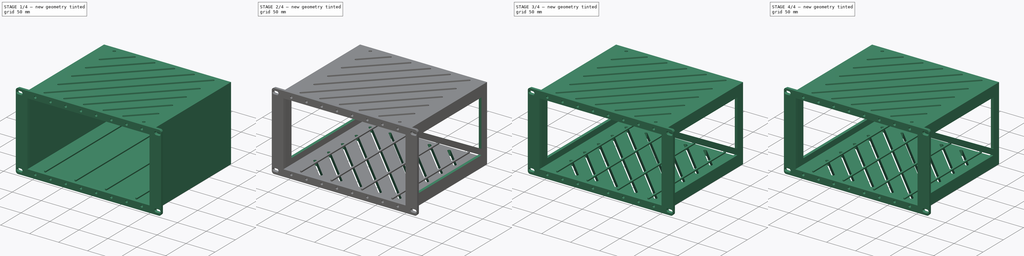
[diagram: build sequence overview — one tinted view per stage of 4, left to right]
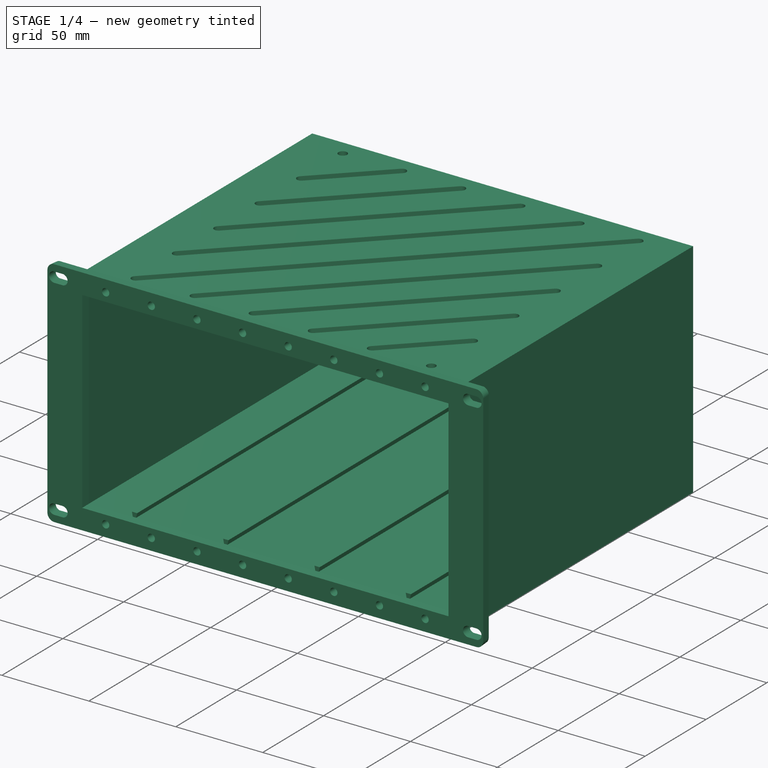
[diagram: stage 1 of 4 — iso view after this stage's code; geometry added in this stage tinted green]
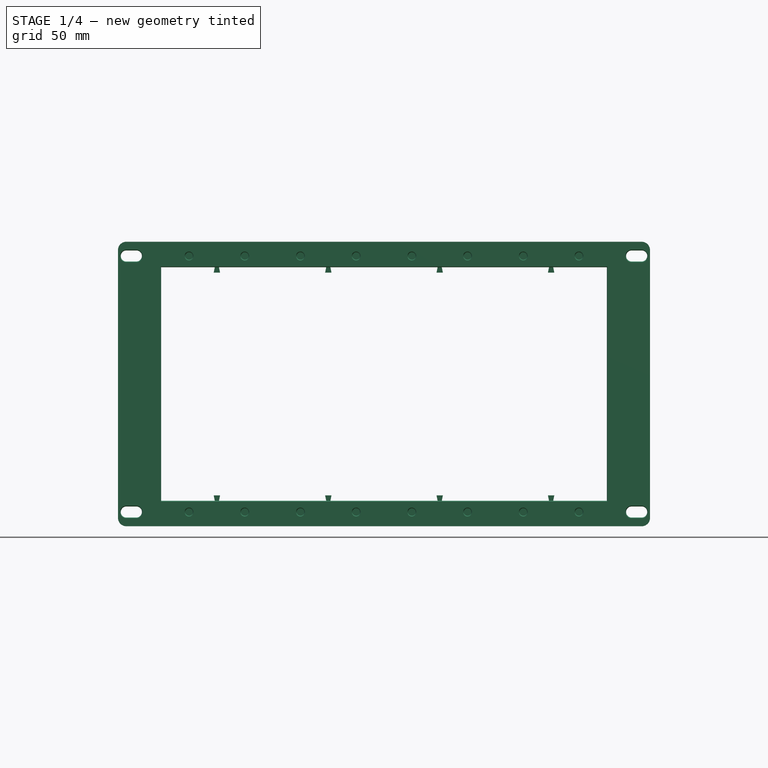
[diagram: stage 1 of 4 — front view after this stage's code; geometry added in this stage tinted green]
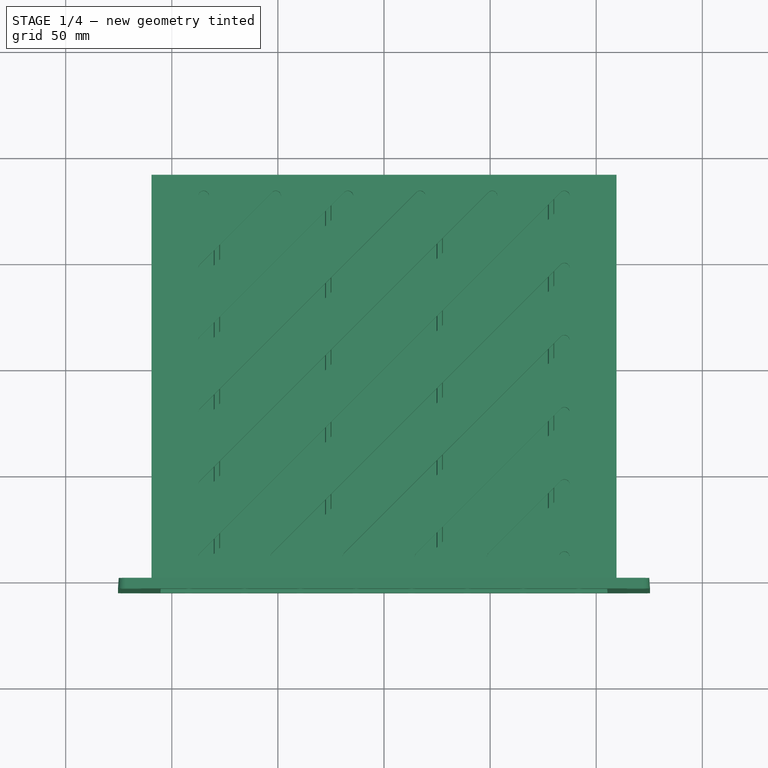
[diagram: stage 1 of 4 — top view after this stage's code; geometry added in this stage tinted green]
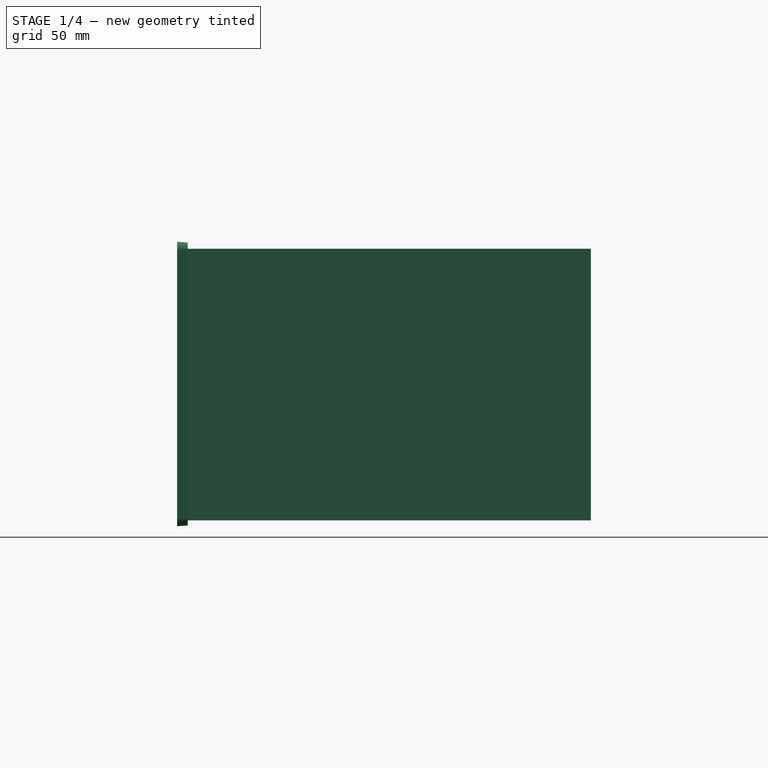
[diagram: stage 1 of 4 — right view after this stage's code; geometry added in this stage tinted green]
FCSTD DOCUMENT  (FreeCAD 1.0R39285 (Git))
Label: 3U_blade_system
License: All rights reserved
objects: Sketcher::SketchObject×7, PartDesign::Fillet×5, PartDesign::Pocket×4, PartDesign::Pad×2, PartDesign::Body×1
note: 48 computed .brp shape members not serialized (recipe doc carries the construction recipe); baked Part::Feature solids carry a one-line shape summary decoded from their .brp

FEATURE [Sketcher::SketchObject] Sketch  label="1U geometry"
  ArcFitTolerance = 1e-06
  AttachmentSupport = -> [XZ_Plane]
  FullyConstrained = false
  MakeInternals = false
  MapMode = 5
  Placement = pos=(0,0,0) rot=(1,0,0;1.5708rad)
  sketch-geometry (13):
    g0: LineSegment [constr] StartX=-127 StartY=-22.225 StartZ=0 EndX=127 EndY=-22.225 EndZ=0
    g1: LineSegment [constr] StartX=127 StartY=-22.225 StartZ=0 EndX=127 EndY=22.225 EndZ=0
    g2: LineSegment [constr] StartX=127 StartY=22.225 StartZ=0 EndX=-127 EndY=22.225 EndZ=0
    g3: LineSegment [constr] StartX=-127 StartY=22.225 StartZ=0 EndX=-127 EndY=-22.225 EndZ=0
    g4: GeomPoint [constr] X=0 Y=0 Z=0
    g5: LineSegment [constr] StartX=111.12 StartY=-22.225 StartZ=0 EndX=111.12 EndY=22.225 EndZ=0
    g6: LineSegment [constr] StartX=-111.12 StartY=-22.225 StartZ=0 EndX=-111.12 EndY=22.225 EndZ=0
    g7: Circle [constr] CenterX=119.057 CenterY=15.875 CenterZ=0 NormalX=0 NormalY=0 NormalZ=1 AngleXU=0 Radius=2.38
    g8: Circle [constr] CenterX=119.057 CenterY=-15.875 CenterZ=0 NormalX=0 NormalY=0 NormalZ=1 AngleXU=0 Radius=2.375
    g9: Circle [constr] CenterX=119.057 CenterY=3.9e-15 CenterZ=0 NormalX=0 NormalY=0 NormalZ=1 AngleXU=0 Radius=2.38
    g10: Circle [constr] CenterX=-119.063 CenterY=15.875 CenterZ=0 NormalX=0 NormalY=0 NormalZ=1 AngleXU=0 Radius=2.38
    g11: Circle [constr] CenterX=-119.063 CenterY=-15.875 CenterZ=0 NormalX=0 NormalY=0 NormalZ=1 AngleXU=0 Radius=2.375
    g12: Circle [constr] CenterX=-119.063 CenterY=0 CenterZ=0 NormalX=0 NormalY=0 NormalZ=1 AngleXU=0 Radius=2.38
  constraints (34):
    c: Coincident(g0,g1)
    c: Coincident(g1,g2)
    c: Coincident(g2,g3)
    c: Coincident(g3,g0)
    c: Horizontal(g0)
    c: Horizontal(g2)
    c: Vertical(g1)
    c: Vertical(g3)
    c: Symmetric(g2,g0,g4)
    c: Distance(g1,g3) = 254
    c: Distance(g0,g2) = 44.45
    c: Coincident(g-1,g4)
    c: Vertical(g5)
    c: PointOnObject(g5,g0)
    c: Vertical(g6)
    c: Distance(g1,g5) = 15.88
    c: Distance(g3,g6) = 15.88
    c: Diameter(g7) = 4.76
    c: Distance(g7,g5) = 7.9375
    c: Distance(g7,g2) = 6.35
    c: Diameter(g8) = 4.75
    c: Distance(g8,g5) = 7.9375
    c: Distance(g8,g0) = 6.35
    c: Diameter(g9) = 4.76
    c: Distance(g9,g5) = 7.9375
    c: DistanceY(g9,g7) = 15.875
    c: Diameter(g10) = 4.76
    c: Diameter(g11) = 4.75
    c: Diameter(g12) = 4.76
    c: DistanceY(g12,g10) = 15.875
    c: Distance(g10,g3) = 7.9375
    c: Distance(g12,g3) = 7.9375
    c: Distance(g11,g3) = 7.9375
    c: Distance(g5,g6) = 222.24
FEATURE [Sketcher::SketchObject] Sketch001  label="Front plate sketch"
  ArcFitTolerance = 1e-06
  AttachmentSupport = -> [XZ_Plane]
  FullyConstrained = false
  MakeInternals = false
  MapMode = 5
  Placement = pos=(0,0,0) rot=(1,0,0;1.5708rad)
  expr: Constraints[10] = Sketch.Constraints[10]
  expr: Constraints[15] = Sketch.Constraints[15]
  expr: Constraints[16] = Sketch.Constraints[16]
  expr: Constraints[17] = Sketch.Constraints[17]
  expr: Constraints[18] = Sketch.Constraints[18]
  expr: Constraints[19] = Sketch.Constraints[19]
  expr: Constraints[20] = Sketch.Constraints[20]
  expr: Constraints[21] = Sketch.Constraints[21]
  expr: Constraints[22] = Sketch.Constraints[22]
  expr: Constraints[23] = Sketch.Constraints[23]
  expr: Constraints[24] = Sketch.Constraints[24]
  expr: Constraints[25] = Sketch.Constraints[25]
  expr: Constraints[26] = Sketch.Constraints[27]
  expr: Constraints[27] = Sketch.Constraints[32]
  expr: Constraints[37] = Sketch.Constraints[9]
  expr: Constraints[38] = Sketch.Constraints[10]
  expr: Constraints[43] = Sketch.Constraints[15]
  expr: Constraints[44] = Sketch.Constraints[16]
  expr: Constraints[45] = Sketch.Constraints[17]
  expr: Constraints[46] = Sketch.Constraints[18]
  expr: Constraints[47] = Sketch.Constraints[19]
  expr: Constraints[48] = Sketch.Constraints[20]
  expr: Constraints[49] = Sketch.Constraints[21]
  expr: Constraints[50] = Sketch.Constraints[22]
  expr: Constraints[51] = Sketch.Constraints[23]
  expr: Constraints[52] = Sketch.Constraints[24]
  expr: Constraints[53] = Sketch.Constraints[25]
  expr: Constraints[54] = Sketch.Constraints[26]
  expr: Constraints[55] = Sketch.Constraints[27]
  expr: Constraints[56] = Sketch.Constraints[28]
  expr: Constraints[57] = Sketch.Constraints[29]
  expr: Constraints[58] = Sketch.Constraints[30]
  expr: Constraints[59] = Sketch.Constraints[31]
  expr: Constraints[60] = Sketch.Constraints[32]
  expr: Constraints[9] = Sketch.Constraints[9]
  sketch-geometry (75):
    g0: LineSegment [constr] StartX=-127 StartY=-22.225 StartZ=0 EndX=127 EndY=-22.225 EndZ=0
    g1: LineSegment [constr] StartX=127 StartY=-22.225 StartZ=0 EndX=127 EndY=22.225 EndZ=0
    g2: LineSegment [constr] StartX=127 StartY=22.225 StartZ=0 EndX=-127 EndY=22.225 EndZ=0
    g3: LineSegment [constr] StartX=-127 StartY=22.225 StartZ=0 EndX=-127 EndY=-22.225 EndZ=0
    g4: GeomPoint [constr] X=0 Y=0 Z=0
    g5: LineSegment [constr] StartX=111.12 StartY=-22.225 StartZ=0 EndX=111.12 EndY=22.225 EndZ=0
    g6: LineSegment [constr] StartX=-111.12 StartY=-22.225 StartZ=0 EndX=-111.12 EndY=22.225 EndZ=0
    g7: Circle [constr] CenterX=119.058 CenterY=15.875 CenterZ=0 NormalX=0 NormalY=0 NormalZ=1 AngleXU=0 Radius=2.38
    g8: Circle [constr] CenterX=119.058 CenterY=-15.875 CenterZ=0 NormalX=0 NormalY=0 NormalZ=1 AngleXU=0 Radius=2.375
    g9: Circle [constr] CenterX=119.058 CenterY=3e-15 CenterZ=0 NormalX=0 NormalY=0 NormalZ=1 AngleXU=0 Radius=2.38
    g10: Circle [constr] CenterX=-119.063 CenterY=-15.875 CenterZ=0 NormalX=0 NormalY=0 NormalZ=1 AngleXU=0 Radius=2.375
    g11: LineSegment [constr] StartX=-127 StartY=-22.225 StartZ=0 EndX=127 EndY=-22.225 EndZ=0
    g12: LineSegment [constr] StartX=127 StartY=-22.225 StartZ=0 EndX=127 EndY=22.225 EndZ=0
    g13: LineSegment [constr] StartX=127 StartY=22.225 StartZ=0 EndX=-127 EndY=22.225 EndZ=0
    g14: LineSegment [constr] StartX=-127 StartY=22.225 StartZ=0 EndX=-127 EndY=-22.225 EndZ=0
    g15: GeomPoint [constr] X=0 Y=0 Z=0
    g16: LineSegment [constr] StartX=111.12 StartY=-22.225 StartZ=0 EndX=111.12 EndY=22.225 EndZ=0
    g17: LineSegment [constr] StartX=-111.12 StartY=-22.225 StartZ=0 EndX=-111.12 EndY=22.225 EndZ=0
    g18: Circle [constr] CenterX=119.057 CenterY=15.875 CenterZ=0 NormalX=0 NormalY=0 NormalZ=1 AngleXU=0 Radius=2.38
    g19: Circle [constr] CenterX=119.057 CenterY=-15.875 CenterZ=0 NormalX=0 NormalY=0 NormalZ=1 AngleXU=0 Radius=2.375
    g20: Circle [constr] CenterX=119.057 CenterY=3.3e-15 CenterZ=0 NormalX=0 NormalY=0 NormalZ=1 AngleXU=0 Radius=2.38
    g21: Circle [constr] CenterX=-119.063 CenterY=15.875 CenterZ=0 NormalX=0 NormalY=0 NormalZ=1 AngleXU=0 Radius=2.38
    g22: Circle [constr] CenterX=-119.062 CenterY=-15.875 CenterZ=0 NormalX=0 NormalY=0 NormalZ=1 AngleXU=0 Radius=2.375
    g23: Circle [constr] CenterX=-119.063 CenterY=0 CenterZ=0 NormalX=0 NormalY=0 NormalZ=1 AngleXU=0 Radius=2.38
    g24: LineSegment StartX=-121.464 StartY=-66.675 StartZ=0 EndX=121.464 EndY=-66.675 EndZ=0
    g25: LineSegment StartX=125 StartY=-63.1395 StartZ=0 EndX=125 EndY=63.1395 EndZ=0
    g26: LineSegment StartX=121.464 StartY=66.675 StartZ=0 EndX=-121.464 EndY=66.675 EndZ=0
    g27: LineSegment StartX=-125 StartY=63.1395 StartZ=0 EndX=-125 EndY=-63.1395 EndZ=0
    g28: GeomPoint [constr] X=0 Y=0 Z=0
    g29: ArcOfCircle CenterX=-121.442 CenterY=60.325 CenterZ=0 NormalX=0 NormalY=0 NormalZ=1 AngleXU=0 Radius=2.59621 StartAngle=1.5708 EndAngle=4.71239
    g30: ArcOfCircle CenterX=-116.683 CenterY=60.325 CenterZ=0 NormalX=0 NormalY=0 NormalZ=1 AngleXU=0 Radius=2.59621 StartAngle=4.71239 EndAngle=7.85398
    g31: LineSegment StartX=-121.442 StartY=62.9212 StartZ=0 EndX=-116.683 EndY=62.9212 EndZ=0
    g32: LineSegment StartX=-121.442 StartY=57.7288 StartZ=0 EndX=-116.683 EndY=57.7288 EndZ=0
    g33: ArcOfCircle CenterX=121.464 CenterY=-63.1395 CenterZ=0 NormalX=0 NormalY=0 NormalZ=1 AngleXU=0 Radius=3.53553 StartAngle=4.71239 EndAngle=6.28319
    g34: GeomPoint [constr] X=125 Y=-66.675 Z=0
    g35: ArcOfCircle CenterX=-121.464 CenterY=-63.1395 CenterZ=0 NormalX=0 NormalY=0 NormalZ=1 AngleXU=0 Radius=3.53553 StartAngle=3.14159 EndAngle=4.71239
    g36: GeomPoint [constr] X=-125 Y=-66.675 Z=0
    g37: ArcOfCircle CenterX=-121.464 CenterY=63.1395 CenterZ=0 NormalX=0 NormalY=0 NormalZ=1 AngleXU=0 Radius=3.53553 StartAngle=1.5708 EndAngle=3.14159
    g38: GeomPoint [constr] X=-125 Y=66.675 Z=0
    g39: ArcOfCircle CenterX=121.464 CenterY=63.1395 CenterZ=0 NormalX=0 NormalY=0 NormalZ=1 AngleXU=0 Radius=3.53553 StartAngle=6e-16 EndAngle=1.5708
    g40: GeomPoint [constr] X=125 Y=66.675 Z=0
    g41: LineSegment StartX=121.442 StartY=62.9212 StartZ=0 EndX=116.683 EndY=62.9212 EndZ=0
    g42: LineSegment StartX=121.442 StartY=57.7288 StartZ=0 EndX=116.683 EndY=57.7288 EndZ=0
    g43: ArcOfCircle CenterX=121.442 CenterY=60.325 CenterZ=0 NormalX=0 NormalY=0 NormalZ=1 AngleXU=0 Radius=2.59621 StartAngle=4.71239 EndAngle=7.85398
    g44: ArcOfCircle CenterX=116.683 CenterY=60.325 CenterZ=0 NormalX=0 NormalY=0 NormalZ=1 AngleXU=0 Radius=2.59621 StartAngle=1.5708 EndAngle=4.71239
    g45: ArcOfCircle CenterX=-121.442 CenterY=-60.325 CenterZ=0 NormalX=0 NormalY=0 NormalZ=1 AngleXU=0 Radius=2.59621 StartAngle=1.5708 EndAngle=4.71239
    g46: LineSegment StartX=-121.442 StartY=-62.9212 StartZ=0 EndX=-116.683 EndY=-62.9212 EndZ=0
    g47: ArcOfCircle CenterX=-116.683 CenterY=-60.325 CenterZ=0 NormalX=0 NormalY=0 NormalZ=1 AngleXU=0 Radius=2.59621 StartAngle=4.71239 EndAngle=7.85398
    g48: LineSegment StartX=-121.442 StartY=-57.7288 StartZ=0 EndX=-116.683 EndY=-57.7288 EndZ=0
    g49: ArcOfCircle CenterX=116.683 CenterY=-60.325 CenterZ=0 NormalX=0 NormalY=0 NormalZ=1 AngleXU=0 Radius=2.59621 StartAngle=1.5708 EndAngle=4.71239
    g50: LineSegment StartX=121.442 StartY=-62.9212 StartZ=0 EndX=116.683 EndY=-62.9212 EndZ=0
    g51: ArcOfCircle CenterX=121.442 CenterY=-60.325 CenterZ=0 NormalX=0 NormalY=0 NormalZ=1 AngleXU=0 Radius=2.59621 StartAngle=4.71239 EndAngle=7.85398
    g52: LineSegment StartX=121.442 StartY=-57.7288 StartZ=0 EndX=116.683 EndY=-57.7288 EndZ=0
    g53: LineSegment StartX=-105 StartY=-55 StartZ=0 EndX=105 EndY=-55 EndZ=0
    g54: LineSegment StartX=105 StartY=-55 StartZ=0 EndX=105 EndY=55 EndZ=0
    g55: LineSegment StartX=105 StartY=55 StartZ=0 EndX=-105 EndY=55 EndZ=0
    g56: LineSegment StartX=-105 StartY=55 StartZ=0 EndX=-105 EndY=-55 EndZ=0
    g57: GeomPoint [constr] X=0 Y=0 Z=0
    g58: Circle CenterX=-91.875 CenterY=60.325 CenterZ=0 NormalX=0 NormalY=0 NormalZ=1 AngleXU=0 Radius=1.7525
    g59: Circle CenterX=-65.625 CenterY=60.325 CenterZ=0 NormalX=0 NormalY=0 NormalZ=1 AngleXU=0 Radius=1.7525
    g60: LineSegment [constr] StartX=-52.5 StartY=-66.675 StartZ=0 EndX=-52.5 EndY=66.675 EndZ=0
    g61: Circle CenterX=-13.125 CenterY=60.325 CenterZ=0 NormalX=0 NormalY=0 NormalZ=1 AngleXU=0 Radius=1.7525
    g62: Circle CenterX=-39.375 CenterY=60.325 CenterZ=0 NormalX=0 NormalY=0 NormalZ=1 AngleXU=0 Radius=1.7525
    g63: Circle CenterX=91.875 CenterY=60.325 CenterZ=0 NormalX=0 NormalY=0 NormalZ=1 AngleXU=0 Radius=1.7525
    g64: Circle CenterX=65.625 CenterY=60.325 CenterZ=0 NormalX=0 NormalY=0 NormalZ=1 AngleXU=0 Radius=1.7525
    g65: Circle CenterX=13.125 CenterY=60.325 CenterZ=0 NormalX=0 NormalY=0 NormalZ=1 AngleXU=0 Radius=1.7525
    g66: Circle CenterX=39.375 CenterY=60.325 CenterZ=0 NormalX=0 NormalY=0 NormalZ=1 AngleXU=0 Radius=1.7525
    g67: Circle CenterX=-91.875 CenterY=-60.325 CenterZ=0 NormalX=0 NormalY=0 NormalZ=1 AngleXU=0 Radius=1.7525
    g68: Circle CenterX=-65.625 CenterY=-60.325 CenterZ=0 NormalX=0 NormalY=0 NormalZ=1 AngleXU=0 Radius=1.7525
    g69: Circle CenterX=-13.125 CenterY=-60.325 CenterZ=0 NormalX=0 NormalY=0 NormalZ=1 AngleXU=0 Radius=1.7525
    g70: Circle CenterX=-39.375 CenterY=-60.325 CenterZ=0 NormalX=0 NormalY=0 NormalZ=1 AngleXU=0 Radius=1.7525
    g71: Circle CenterX=91.875 CenterY=-60.325 CenterZ=0 NormalX=0 NormalY=0 NormalZ=1 AngleXU=0 Radius=1.7525
    g72: Circle CenterX=65.625 CenterY=-60.325 CenterZ=0 NormalX=0 NormalY=0 NormalZ=1 AngleXU=0 Radius=1.7525
    g73: Circle CenterX=13.125 CenterY=-60.325 CenterZ=0 NormalX=0 NormalY=0 NormalZ=1 AngleXU=0 Radius=1.7525
    g74: Circle CenterX=39.375 CenterY=-60.325 CenterZ=0 NormalX=0 NormalY=0 NormalZ=1 AngleXU=0 Radius=1.7525
  constraints (141):
    c: Coincident(g0,g1)
    c: Coincident(g1,g2)
    c: Coincident(g2,g3)
    c: Coincident(g3,g0)
    c: Horizontal(g0)
    c: Horizontal(g2)
    c: Vertical(g1)
    c: Vertical(g3)
    c: Symmetric(g2,g0,g4)
    c: Distance(g1,g3) = 254
    c: Distance(g0,g2) = 44.45
    c: Coincident(g-1,g4)
    c: Vertical(g5)
    c: PointOnObject(g5,g0)
    c: Vertical(g6)
    c: Distance(g1,g5) = 15.88
    c: Distance(g3,g6) = 15.88
    c: Diameter(g7) = 4.76
    c: Distance(g7,g5) = 7.9375
    c: Distance(g7,g2) = 6.35
    c: Diameter(g8) = 4.75
    c: Distance(g8,g5) = 7.9375
    c: Distance(g8,g0) = 6.35
    c: Diameter(g9) = 4.76
    c: Distance(g9,g5) = 7.9375
    c: DistanceY(g9,g7) = 15.875
    c: Diameter(g10) = 4.75
    c: Distance(g10,g3) = 7.9375
    c: Coincident(g11,g12)
    c: Coincident(g12,g13)
    c: Coincident(g13,g14)
    c: Coincident(g14,g11)
    c: Horizontal(g11)
    c: Horizontal(g13)
    c: Vertical(g12)
    c: Vertical(g14)
    c: Symmetric(g13,g11,g15)
    c: Distance(g12,g14) = 254
    c: Distance(g11,g13) = 44.45
    c: Coincident(g-1,g15)
    c: Vertical(g16)
    c: PointOnObject(g16,g11)
    c: Vertical(g17)
    c: Distance(g12,g16) = 15.88
    c: Distance(g14,g17) = 15.88
    c: Diameter(g18) = 4.76
    c: Distance(g18,g16) = 7.9375
    c: Distance(g18,g13) = 6.35
    c: Diameter(g19) = 4.75
    c: Distance(g19,g16) = 7.9375
    c: Distance(g19,g11) = 6.35
    c: Diameter(g20) = 4.76
    c: Distance(g20,g16) = 7.9375
    c: DistanceY(g20,g18) = 15.875
    c: Diameter(g21) = 4.76
    c: Diameter(g22) = 4.75
    c: Diameter(g23) = 4.76
    c: DistanceY(g23,g21) = 15.875
    c: Distance(g21,g14) = 7.9375
    c: Distance(g23,g14) = 7.9375
    c: Distance(g22,g14) = 7.9375
    c: Horizontal(g24)
    c: Horizontal(g26)
    c: Vertical(g25)
    c: Vertical(g27)
    c: Symmetric(g40,g36,g28)
    c: Distance(g34,g36) = 250
    c: Coincident(g28,g4)
    c: DistanceY(g36,g38) = 133.35
    c: Tangent(g29,g31) = 1.5708
    c: Tangent(g29,g32) = -1.5708
    c: Tangent(g30,g31) = 1.5708
    c: Tangent(g30,g32) = -1.5708
    c: Equal(g29,g30)
    c: Horizontal(g32)
    c: PointOnObject(g34,g24)
    c: PointOnObject(g34,g25)
    c: Tangent(g24,g33) = -1.5708
    c: Tangent(g25,g33) = -1.5708
    c: PointOnObject(g36,g24)
    c: PointOnObject(g36,g27)
    c: Tangent(g24,g35) = -1.5708
    c: Tangent(g27,g35) = -1.5708
    c: PointOnObject(g38,g26)
    c: PointOnObject(g38,g27)
    c: Tangent(g26,g37) = -1.5708
    c: Tangent(g27,g37) = -1.5708
    c: PointOnObject(g40,g25)
    c: PointOnObject(g40,g26)
    c: Tangent(g25,g39) = -1.5708
    c: Tangent(g26,g39) = -1.5708
    c: Distance(g37,g38) = 5  'ArcDistance'
    c: Distance(g39,g40) = 5
    c: Distance(g35,g36) = 5
    c: Distance(g33,g34) = 5
    c: Tangent(g43,g41) = -1.5708
    c: Tangent(g43,g42) = 1.5708
    c: Tangent(g44,g41) = -1.5708
    c: Tangent(g44,g42) = 1.5708
    c: Equal(g43,g44)
    c: Horizontal(g42)
    c: Tangent(g45,g46) = -1.5708
    c: Tangent(g45,g48) = 1.5708
    c: Tangent(g47,g46) = -1.5708
    c: Tangent(g47,g48) = 1.5708
    c: Equal(g45,g47)
    c: Horizontal(g48)
    c: Tangent(g51,g50) = 1.5708
    c: Tangent(g51,g52) = -1.5708
    c: Tangent(g49,g50) = 1.5708
    c: Tangent(g49,g52) = -1.5708
    c: Equal(g51,g49)
    c: Horizontal(g52)
    c: Coincident(g53,g54)
    c: Coincident(g54,g55)
    c: Coincident(g55,g56)
    c: Coincident(g56,g53)
    c: Horizontal(g53)
    c: Horizontal(g55)
    c: Vertical(g54)
    c: Vertical(g56)
    c: Symmetric(g55,g53,g57)
    c: Coincident(g57,g4)
    c: Distance(g56,g56) = 110
    c: DistanceX(g55,g55) = 210
    c: Diameter(g58) = 3.505
    c: Distance(g30,g26) = 6.35
    c: Distance(g58,g26) = 6.35
    c: DistanceX(g55,g58) = 13.125
    c: Vertical(g60)
    c: PointOnObject(g60,g26)
    c: PointOnObject(g60,g24)
    c: DistanceX(g53,g60) = 52.5
    c: DistanceX(g59,g60) = 13.125
    c: Diameter(g61) = 3.505
    c: Diameter(g63) = 3.505
    c: Diameter(g65) = 3.505
    c: Diameter(g67) = 3.505
    c: Diameter(g69) = 3.505
    c: Diameter(g71) = 3.505
    c: Diameter(g73) = 3.505
FEATURE [PartDesign::Pad] Pad  label="Font Pad"
  Direction = (0,-1,2e-16)
  Length = 5
  Length2 = 10
  Placement = pos=(0,0,0) rot=(1,0,0;1.5708rad)
  Profile = -> Sketch001
  ReferenceAxis = -> Sketch001 [N_Axis]
  Refine = true
  Suppressed = false
  TaperAngle = 4
  Type = 0
FEATURE [Sketcher::SketchObject] Sketch002  label="Body scketch"
  ArcFitTolerance = 1e-06
  FullyConstrained = true
  MakeInternals = false
  MapMode = 5
  Placement = pos=(0,0,0) rot=(-1,0,0;1.5708rad)
  sketch-geometry (72):
    g0: GeomPoint [constr] X=0 Y=0 Z=0
    g1: LineSegment StartX=109.57 StartY=-63.72 StartZ=0 EndX=109.57 EndY=64.28 EndZ=0
    g2: LineSegment StartX=109.57 StartY=64.28 StartZ=0 EndX=-109.56 EndY=64.28 EndZ=0
    g3: LineSegment StartX=-109.56 StartY=64.28 StartZ=0 EndX=-109.56 EndY=-63.72 EndZ=0
    g4: LineSegment StartX=-109.56 StartY=-63.72 StartZ=0 EndX=109.57 EndY=-63.72 EndZ=0
    g5: GeomPoint [constr] X=0.005 Y=0.28 Z=0
    g6: GeomPoint [constr] X=0.005 Y=0.28 Z=0
    g7: GeomPoint [constr] X=0 Y=0 Z=0
    g8: GeomPoint [constr] X=0 Y=0 Z=0
    g9: GeomPoint [constr] X=0 Y=0 Z=0
    g10: GeomPoint [constr] X=0 Y=0 Z=0
    g11: LineSegment [constr] StartX=-52.5 StartY=-66.675 StartZ=0 EndX=-52.5 EndY=66.675 EndZ=0
    g12: LineSegment StartX=105 StartY=-55 StartZ=0 EndX=105 EndY=55 EndZ=0
    g13: LineSegment StartX=-105 StartY=55 StartZ=0 EndX=-105 EndY=-55 EndZ=0
    g14: GeomPoint [constr] X=0 Y=0 Z=0
    g15: GeomPoint X=-77.75 Y=55 Z=0
    g16: GeomPoint X=-79.75 Y=55 Z=0
    g17: GeomPoint X=-77.25 Y=52.5 Z=0
    g18: GeomPoint X=-80.25 Y=52.5 Z=0
    g19: LineSegment StartX=-79.75 StartY=55 StartZ=0 EndX=-80.25 EndY=52.5 EndZ=0
    g20: LineSegment StartX=-80.25 StartY=52.5 StartZ=0 EndX=-77.25 EndY=52.5 EndZ=0
    g21: LineSegment StartX=-77.75 StartY=55 StartZ=0 EndX=-77.25 EndY=52.5 EndZ=0
    g22: GeomPoint X=-25.25 Y=55 Z=0
    g23: LineSegment StartX=-25.25 StartY=55 StartZ=0 EndX=-24.75 EndY=52.5 EndZ=0
    g24: GeomPoint X=-24.75 Y=52.5 Z=0
    g25: LineSegment StartX=-24.75 StartY=52.5 StartZ=0 EndX=-27.75 EndY=52.5 EndZ=0
    g26: GeomPoint X=-27.75 Y=52.5 Z=0
    g27: LineSegment StartX=-27.25 StartY=55 StartZ=0 EndX=-27.75 EndY=52.5 EndZ=0
    g28: GeomPoint X=-27.25 Y=55 Z=0
    g29: GeomPoint X=25.25 Y=55 Z=0
    g30: LineSegment StartX=25.25 StartY=55 StartZ=0 EndX=24.75 EndY=52.5 EndZ=0
    g31: LineSegment StartX=24.75 StartY=52.5 StartZ=0 EndX=27.75 EndY=52.5 EndZ=0
    g32: LineSegment StartX=27.25 StartY=55 StartZ=0 EndX=27.75 EndY=52.5 EndZ=0
    g33: LineSegment [constr] StartX=51.7548 StartY=66.675 StartZ=0 EndX=51.7548 EndY=-66.675 EndZ=0
    g34: GeomPoint X=77.75 Y=-55 Z=0
    g35: GeomPoint X=79.75 Y=-55 Z=0
    g36: GeomPoint X=77.25 Y=-52.5 Z=0
    g37: GeomPoint X=80.25 Y=-52.5 Z=0
    g38: LineSegment StartX=79.75 StartY=-55 StartZ=0 EndX=80.25 EndY=-52.5 EndZ=0
    g39: LineSegment StartX=80.25 StartY=-52.5 StartZ=0 EndX=77.25 EndY=-52.5 EndZ=0
    g40: LineSegment StartX=77.75 StartY=-55 StartZ=0 EndX=77.25 EndY=-52.5 EndZ=0
    g41: GeomPoint X=25.25 Y=-55 Z=0
    g42: LineSegment StartX=25.25 StartY=-55 StartZ=0 EndX=24.75 EndY=-52.5 EndZ=0
    g43: GeomPoint X=24.75 Y=-52.5 Z=0
    g44: LineSegment StartX=24.75 StartY=-52.5 StartZ=0 EndX=27.75 EndY=-52.5 EndZ=0
    g45: GeomPoint X=27.75 Y=-52.5 Z=0
    g46: LineSegment StartX=27.25 StartY=-55 StartZ=0 EndX=27.75 EndY=-52.5 EndZ=0
    g47: GeomPoint X=27.25 Y=-55 Z=0
    g48: GeomPoint X=-79.75 Y=-55 Z=0
    g49: LineSegment StartX=-79.75 StartY=-55 StartZ=0 EndX=-80.25 EndY=-52.5 EndZ=0
    g50: GeomPoint X=-80.25 Y=-52.5 Z=0
    g51: LineSegment StartX=-80.25 StartY=-52.5 StartZ=0 EndX=-77.25 EndY=-52.5 EndZ=0
    g52: LineSegment StartX=-77.75 StartY=-55 StartZ=0 EndX=-77.25 EndY=-52.5 EndZ=0
    g53: GeomPoint X=-77.25 Y=-52.5 Z=0
    g54: GeomPoint X=-77.75 Y=-55 Z=0
    g55: GeomPoint X=-25.25 Y=-55 Z=0
    g56: LineSegment StartX=-25.25 StartY=-55 StartZ=0 EndX=-24.75 EndY=-52.5 EndZ=0
    g57: LineSegment StartX=-24.75 StartY=-52.5 StartZ=0 EndX=-27.75 EndY=-52.5 EndZ=0
    g58: LineSegment StartX=-27.25 StartY=-55 StartZ=0 EndX=-27.75 EndY=-52.5 EndZ=0
    g59: LineSegment StartX=-105 StartY=-55 StartZ=0 EndX=-79.75 EndY=-55 EndZ=0
    g60: LineSegment StartX=-77.75 StartY=-55 StartZ=0 EndX=-27.25 EndY=-55 EndZ=0
    g61: LineSegment StartX=-25.25 StartY=-55 StartZ=0 EndX=25.25 EndY=-55 EndZ=0
    g62: LineSegment StartX=27.25 StartY=-55 StartZ=0 EndX=77.75 EndY=-55 EndZ=0
    g63: LineSegment StartX=79.75 StartY=-55 StartZ=0 EndX=105 EndY=-55 EndZ=0
    g64: LineSegment StartX=-105 StartY=55 StartZ=0 EndX=-79.75 EndY=55 EndZ=0
    g65: LineSegment StartX=-77.75 StartY=55 StartZ=0 EndX=-27.25 EndY=55 EndZ=0
    g66: LineSegment StartX=-25.25 StartY=55 StartZ=0 EndX=25.25 EndY=55 EndZ=0
    g67: LineSegment StartX=27.25 StartY=55 StartZ=0 EndX=77.75 EndY=55 EndZ=0
    g68: LineSegment StartX=79.75 StartY=55 StartZ=0 EndX=105 EndY=55 EndZ=0
    g69: LineSegment StartX=79.75 StartY=55 StartZ=0 EndX=80.25 EndY=52.5 EndZ=0
    g70: LineSegment StartX=80.25 StartY=52.5 StartZ=0 EndX=77.25 EndY=52.5 EndZ=0
    g71: LineSegment StartX=77.75 StartY=55 StartZ=0 EndX=77.25 EndY=52.5 EndZ=0
  constraints (125):
    c: Coincident(g-1,g0)
    c: Coincident(g1,g2)
    c: Coincident(g2,g3)
    c: Coincident(g3,g4)
    c: Coincident(g4,g1)
    c: Vertical(g1)
    c: Vertical(g3)
    c: Horizontal(g2)
    c: Horizontal(g4)
    c: Symmetric(g3,g1,g5)
    c: Coincident(g6,g5)
    c: Distance(g4,g2) = 128
    c: Coincident(g-1,g7)
    c: Coincident(g-1,g8)
    c: Coincident(g9,g7)
    c: Coincident(g10,g7)
    c: Vertical(g11)
    c: Vertical(g12)
    c: Symmetric(g13,g12,g14)
    c: Coincident(g14,g0)
    c: DistanceX(g13,g11) = 52.5
    c: Distance(g13,g3) = 4.56
    c: Distance(g-2,g3) = 109.56
    c: DistanceX(g16,g15) = 2
    c: Coincident(g19,g16)
    c: Coincident(g19,g18)
    c: Coincident(g20,g18)
    c: Coincident(g20,g17)
    c: Horizontal(g20)
    c: Coincident(g21,g15)
    c: Coincident(g21,g17)
    c: Coincident(g23,g22)
    c: Coincident(g23,g24)
    c: Coincident(g25,g24)
    c: Coincident(g25,g26)
    c: Coincident(g27,g28)
    c: Coincident(g27,g26)
    c: Coincident(g30,g29)
    c: Vertical(g33)
    c: Coincident(g38,g35)
    c: Coincident(g38,g37)
    c: Coincident(g39,g37)
    c: Coincident(g39,g36)
    c: Coincident(g40,g34)
    c: Coincident(g40,g36)
    c: Coincident(g42,g41)
    c: Coincident(g42,g43)
    c: Coincident(g44,g43)
    c: Coincident(g44,g45)
    c: Coincident(g46,g47)
    c: Coincident(g46,g45)
    c: Coincident(g49,g48)
    c: Coincident(g49,g50)
    c: Coincident(g51,g50)
    c: Coincident(g51,g53)
    c: Coincident(g52,g54)
    c: Coincident(g52,g53)
    c: Coincident(g56,g55)
    c: Coincident(g59,g13)
    c: Coincident(g59,g48)
    c: Horizontal(g59)
    c: Coincident(g60,g52)
    c: Coincident(g60,g58)
    c: Coincident(g61,g55)
    c: Coincident(g61,g41)
    c: Coincident(g62,g46)
    c: Coincident(g62,g34)
    c: Coincident(g63,g35)
    c: Coincident(g63,g12)
    c: Coincident(g64,g13)
    c: Coincident(g64,g16)
    c: Coincident(g65,g15)
    c: Coincident(g65,g27)
    c: Coincident(g66,g22)
    c: Coincident(g66,g29)
    c: Coincident(g67,g32)
    c: Coincident(g68,g12)
    c: Horizontal(g68)
    c: Coincident(g57,g58)
    c: Coincident(g56,g57)
    c: Coincident(g30,g31)
    c: Coincident(g31,g32)
    c: Distance(g59,g64) = 110
    c: Distance(g12,g2) = 9.28
    c: Symmetric(g15,g27,g11)
    c: Symmetric(g16,g22,g11)
    c: Symmetric(g18,g23,g11)
    c: Symmetric(g17,g25,g11)
    c: Symmetric(g23,g30,g-2)
    c: Symmetric(g25,g31,g-2)
    c: Symmetric(g22,g29,g-2)
    c: Symmetric(g27,g32,g-2)
    c: Symmetric(g18,g49,g-1)
    c: Symmetric(g17,g51,g-1)
    c: Symmetric(g16,g48,g-1)
    c: Symmetric(g52,g15,g-1)
    c: Symmetric(g57,g25,g-1)
    c: Symmetric(g23,g56,g-1)
    c: Symmetric(g55,g22,g-1)
    c: Symmetric(g27,g58,g-1)
    c: Symmetric(g32,g46,g-1)
    c: Symmetric(g41,g29,g-1)
    c: Symmetric(g44,g31,g-1)
    c: Symmetric(g30,g42,g-1)
    c: Symmetric(g19,g69,g-2)
    c: Symmetric(g19,g69,g-2)
    c: Symmetric(g20,g70,g-2)
    c: Symmetric(g20,g70,g-2)
    c: Symmetric(g21,g71,g-2)
    c: Symmetric(g21,g71,g-2)
    c: Coincident(g67,g71)
    c: Coincident(g69,g68)
    c: Symmetric(g69,g37,g-1)
    c: Symmetric(g70,g36,g-1)
    c: Symmetric(g34,g67,g-1)
    c: Symmetric(g68,g35,g-1)
    c: Distance(g64,g20) = 2.5
    c: Block(g11)
    c: Block(g33)
    c: Distance(g13,g1) = 214.57
    c: Symmetric(g12,g13,g-2)
    c: DistanceX(g63,g63) = 25.25
    c: Distance(g20,g20) = 3
    c: Distance(g18,g13) = 24.75
    c: Distance(g65,g-1) = 55
FEATURE [PartDesign::Pad] Pad001  label="Body Pad"
  BaseFeature = -> Pad
  Direction = (0,1,2e-16)
  Length = 190
  Length2 = 10
  Placement = pos=(0,0,0) rot=(1,0,0;1.5708rad)
  Profile = -> Sketch002
  ReferenceAxis = -> Sketch002 [N_Axis]
  Refine = true
  Suppressed = false
  Type = 0
FEATURE [Sketcher::SketchObject] Sketch003  label="Grid Bottom sketch"
  ArcFitTolerance = 1e-06
  AttachmentSupport = -> [Pad001]
  FullyConstrained = false
  MakeInternals = false
  MapMode = 5
  Placement = pos=(0,-1.41e-14,63.72) rot=(0,0,1;3.14159rad)
  sketch-geometry (68):
    g0: LineSegment [constr] StartX=-105 StartY=-190 StartZ=0 EndX=105 EndY=-190 EndZ=0
    g1: LineSegment [constr] StartX=105 StartY=-190 StartZ=0 EndX=105 EndY=0 EndZ=0
    g2: LineSegment [constr] StartX=105 StartY=0 StartZ=0 EndX=-105 EndY=0 EndZ=0
    g3: LineSegment [constr] StartX=-105 StartY=0 StartZ=0 EndX=-105 EndY=-190 EndZ=0
    g4: GeomPoint [constr] X=0 Y=-95 Z=0
    g5: LineSegment [constr] StartX=-85 StartY=-180 StartZ=0 EndX=85 EndY=-180 EndZ=0
    g6: LineSegment [constr] StartX=85 StartY=-180 StartZ=0 EndX=85 EndY=-10 EndZ=0
    g7: LineSegment [constr] StartX=85 StartY=-10 StartZ=0 EndX=-85 EndY=-10 EndZ=0
    g8: LineSegment [constr] StartX=-85 StartY=-10 StartZ=0 EndX=-85 EndY=-180 EndZ=0
    g9: GeomPoint [constr] X=0 Y=-95 Z=0
    g10: GeomPoint X=85 Y=-10 Z=0
    g11: GeomPoint X=85 Y=-44 Z=0
    g12: GeomPoint X=85 Y=-78 Z=0
    g13: GeomPoint X=85 Y=-112 Z=0
    g14: GeomPoint X=85 Y=-146 Z=0
    g15: GeomPoint X=85 Y=-180 Z=0
    g16: GeomPoint X=51 Y=-10 Z=0
    g17: GeomPoint X=17 Y=-10 Z=0
    g18: GeomPoint X=-17 Y=-10 Z=0
    g19: GeomPoint X=-51 Y=-10 Z=0
    g20: GeomPoint X=-85 Y=-10 Z=0
    g21: GeomPoint X=-85 Y=-44 Z=0
    g22: GeomPoint X=-85 Y=-78 Z=0
    g23: GeomPoint X=-85 Y=-112 Z=0
    g24: GeomPoint X=-85 Y=-146 Z=0
    g25: GeomPoint X=-85 Y=-180 Z=0
    g26: GeomPoint X=-51 Y=-180 Z=0
    g27: GeomPoint X=-17 Y=-180 Z=0
    g28: GeomPoint X=17 Y=-180 Z=0
    g29: GeomPoint X=51 Y=-180 Z=0
    g30: ArcOfCircle CenterX=85 CenterY=-10 CenterZ=0 NormalX=0 NormalY=0 NormalZ=1 AngleXU=0 Radius=2.5 StartAngle=5.49779 EndAngle=8.63938
    g31: ArcOfCircle CenterX=-85 CenterY=-180 CenterZ=0 NormalX=0 NormalY=0 NormalZ=1 AngleXU=0 Radius=2.5 StartAngle=2.35619 EndAngle=5.49779
    g32: LineSegment StartX=86.7678 StartY=-11.7678 StartZ=0 EndX=-83.2322 EndY=-181.768 EndZ=0
    g33: LineSegment StartX=83.2322 StartY=-8.23223 StartZ=0 EndX=-86.7678 EndY=-178.232 EndZ=0
    g34: ArcOfCircle CenterX=51 CenterY=-10 CenterZ=0 NormalX=0 NormalY=0 NormalZ=1 AngleXU=0 Radius=2.5 StartAngle=5.49779 EndAngle=8.63938
    g35: ArcOfCircle CenterX=-85 CenterY=-146 CenterZ=0 NormalX=0 NormalY=0 NormalZ=1 AngleXU=0 Radius=2.5 StartAngle=2.35619 EndAngle=5.49779
    g36: LineSegment StartX=52.7678 StartY=-11.7678 StartZ=0 EndX=-83.2322 EndY=-147.768 EndZ=0
    g37: LineSegment StartX=49.2322 StartY=-8.23223 StartZ=0 EndX=-86.7678 EndY=-144.232 EndZ=0
    g38: ArcOfCircle CenterX=-85 CenterY=-112 CenterZ=0 NormalX=0 NormalY=0 NormalZ=1 AngleXU=0 Radius=2.5 StartAngle=2.35619 EndAngle=5.49779
    g39: ArcOfCircle CenterX=17 CenterY=-10 CenterZ=0 NormalX=0 NormalY=0 NormalZ=1 AngleXU=0 Radius=2.5 StartAngle=5.49779 EndAngle=8.63938
    g40: LineSegment StartX=-86.7678 StartY=-110.232 StartZ=0 EndX=15.2322 EndY=-8.23223 EndZ=0
    g41: LineSegment StartX=-83.2322 StartY=-113.768 StartZ=0 EndX=18.7678 EndY=-11.7678 EndZ=0
    g42: ArcOfCircle CenterX=-17 CenterY=-10 CenterZ=0 NormalX=0 NormalY=0 NormalZ=1 AngleXU=0 Radius=2.5 StartAngle=5.49779 EndAngle=8.63938
    g43: ArcOfCircle CenterX=-85 CenterY=-78 CenterZ=0 NormalX=0 NormalY=0 NormalZ=1 AngleXU=0 Radius=2.5 StartAngle=2.35619 EndAngle=5.49779
    g44: LineSegment StartX=-15.2322 StartY=-11.7678 StartZ=0 EndX=-83.2322 EndY=-79.7678 EndZ=0
    g45: LineSegment StartX=-18.7678 StartY=-8.23223 StartZ=0 EndX=-86.7678 EndY=-76.2322 EndZ=0
    g46: ArcOfCircle CenterX=-85 CenterY=-44 CenterZ=0 NormalX=0 NormalY=0 NormalZ=1 AngleXU=0 Radius=2.5 StartAngle=2.35619 EndAngle=5.49779
    g47: ArcOfCircle CenterX=-51 CenterY=-10 CenterZ=0 NormalX=0 NormalY=0 NormalZ=1 AngleXU=0 Radius=2.5 StartAngle=5.49779 EndAngle=8.63938
    g48: LineSegment StartX=-86.7678 StartY=-42.2322 StartZ=0 EndX=-52.7678 EndY=-8.23223 EndZ=0
    g49: LineSegment StartX=-83.2322 StartY=-45.7678 StartZ=0 EndX=-49.2322 EndY=-11.7678 EndZ=0
    g50: ArcOfCircle CenterX=-51 CenterY=-180 CenterZ=0 NormalX=0 NormalY=0 NormalZ=1 AngleXU=0 Radius=2.5 StartAngle=2.35619 EndAngle=5.49779
    g51: ArcOfCircle CenterX=85 CenterY=-44 CenterZ=0 NormalX=0 NormalY=0 NormalZ=1 AngleXU=0 Radius=2.5 StartAngle=5.49779 EndAngle=8.63938
    g52: LineSegment StartX=-52.7678 StartY=-178.232 StartZ=0 EndX=83.2322 EndY=-42.2322 EndZ=0
    g53: LineSegment StartX=-49.2322 StartY=-181.768 StartZ=0 EndX=86.7678 EndY=-45.7678 EndZ=0
    g54: ArcOfCircle CenterX=85 CenterY=-78 CenterZ=0 NormalX=0 NormalY=0 NormalZ=1 AngleXU=0 Radius=2.5 StartAngle=5.49779 EndAngle=8.63938
    g55: ArcOfCircle CenterX=-17 CenterY=-180 CenterZ=0 NormalX=0 NormalY=0 NormalZ=1 AngleXU=0 Radius=2.5 StartAngle=2.35619 EndAngle=5.49779
    g56: LineSegment StartX=86.7678 StartY=-79.7678 StartZ=0 EndX=-15.2322 EndY=-181.768 EndZ=0
    g57: LineSegment StartX=83.2322 StartY=-76.2322 StartZ=0 EndX=-18.7678 EndY=-178.232 EndZ=0
    g58: ArcOfCircle CenterX=85 CenterY=-112 CenterZ=0 NormalX=0 NormalY=0 NormalZ=1 AngleXU=0 Radius=2.5 StartAngle=5.49779 EndAngle=8.63938
    g59: ArcOfCircle CenterX=17 CenterY=-180 CenterZ=0 NormalX=0 NormalY=0 NormalZ=1 AngleXU=0 Radius=2.5 StartAngle=2.35619 EndAngle=5.49779
    g60: LineSegment StartX=86.7678 StartY=-113.768 StartZ=0 EndX=18.7678 EndY=-181.768 EndZ=0
    g61: LineSegment StartX=83.2322 StartY=-110.232 StartZ=0 EndX=15.2322 EndY=-178.232 EndZ=0
    g62: ArcOfCircle CenterX=85 CenterY=-146 CenterZ=0 NormalX=0 NormalY=0 NormalZ=1 AngleXU=0 Radius=2.5 StartAngle=5.49779 EndAngle=8.63938
    g63: ArcOfCircle CenterX=51 CenterY=-180 CenterZ=0 NormalX=0 NormalY=0 NormalZ=1 AngleXU=0 Radius=2.5 StartAngle=2.35619 EndAngle=5.49779
    g64: LineSegment StartX=86.7678 StartY=-147.768 StartZ=0 EndX=52.7678 EndY=-181.768 EndZ=0
    g65: LineSegment StartX=83.2322 StartY=-144.232 StartZ=0 EndX=49.2322 EndY=-178.232 EndZ=0
    g66: Circle CenterX=-85 CenterY=-10 CenterZ=0 NormalX=0 NormalY=0 NormalZ=1 AngleXU=0 Radius=2.5
    g67: Circle CenterX=85 CenterY=-180 CenterZ=0 NormalX=0 NormalY=0 NormalZ=1 AngleXU=0 Radius=2.5
  constraints (98):
    c: Coincident(g0,g1)
    c: Coincident(g1,g2)
    c: Coincident(g2,g3)
    c: Coincident(g3,g0)
    c: Horizontal(g0)
    c: Horizontal(g2)
    c: Vertical(g1)
    c: Vertical(g3)
    c: Symmetric(g2,g0,g4)
    c: Distance(g1,g3) = 210
    c: Distance(g0,g2) = 190
    c: PointOnObject(g4,g-2)
    c: PointOnObject(g-1,g2)
    c: Coincident(g5,g6)
    c: Coincident(g6,g7)
    c: Coincident(g7,g8)
    c: Coincident(g8,g5)
    c: Horizontal(g5)
    c: Horizontal(g7)
    c: Vertical(g6)
    c: Vertical(g8)
    c: Symmetric(g7,g5,g9)
    c: Distance(g6,g8) = 170
    c: Distance(g5,g7) = 170
    c: Coincident(g9,g4)
    c: Coincident(g10,g6)
    c: Tangent(g30,g32) = 1.5708
    c: Tangent(g30,g33) = -1.5708
    c: Tangent(g31,g32) = 1.5708
    c: Tangent(g31,g33) = -1.5708
    c: Equal(g30,g31)
    c: Radius(g30) = 2.5
    c: Coincident(g30,g6)
    c: Coincident(g31,g25)
    c: Tangent(g34,g36) = 1.5708
    c: Tangent(g34,g37) = -1.5708
    c: Tangent(g35,g36) = 1.5708
    c: Tangent(g35,g37) = -1.5708
    c: Equal(g34,g35)
    c: Radius(g34) = 2.5
    c: Coincident(g34,g16)
    c: Coincident(g35,g24)
    c: Tangent(g38,g40) = 1.5708
    c: Tangent(g38,g41) = -1.5708
    c: Tangent(g39,g40) = 1.5708
    c: Tangent(g39,g41) = -1.5708
    c: Equal(g38,g39)
    c: Radius(g38) = 2.5
    c: Coincident(g38,g23)
    c: Coincident(g39,g17)
    c: Tangent(g42,g44) = 1.5708
    c: Tangent(g42,g45) = -1.5708
    c: Tangent(g43,g44) = 1.5708
    c: Tangent(g43,g45) = -1.5708
    c: Equal(g42,g43)
    c: Radius(g42) = 2.5
    c: Coincident(g42,g18)
    c: Coincident(g43,g22)
    c: Tangent(g46,g48) = 1.5708
    c: Tangent(g46,g49) = -1.5708
    c: Tangent(g47,g48) = 1.5708
    c: Tangent(g47,g49) = -1.5708
    c: Equal(g46,g47)
    c: Radius(g46) = 2.5
    c: Coincident(g46,g21)
    c: Coincident(g47,g19)
    c: Tangent(g50,g52) = 1.5708
    c: Tangent(g50,g53) = -1.5708
    c: Tangent(g51,g52) = 1.5708
    c: Tangent(g51,g53) = -1.5708
    c: Equal(g50,g51)
    c: Radius(g50) = 2.5
    c: Coincident(g50,g26)
    c: Coincident(g51,g11)
    c: Tangent(g54,g56) = 1.5708
    c: Tangent(g54,g57) = -1.5708
    c: Tangent(g55,g56) = 1.5708
    c: Tangent(g55,g57) = -1.5708
    c: Equal(g54,g55)
    c: Radius(g54) = 2.5
    c: Coincident(g54,g12)
    c: Coincident(g55,g27)
    c: Tangent(g58,g60) = 1.5708
    c: Tangent(g58,g61) = -1.5708
    c: Tangent(g59,g60) = 1.5708
    c: Tangent(g59,g61) = -1.5708
    c: Equal(g58,g59)
    c: Radius(g58) = 2.5
    c: Coincident(g58,g13)
    c: Coincident(g59,g28)
    c: Tangent(g62,g64) = 1.5708
    c: Tangent(g62,g65) = -1.5708
    c: Tangent(g63,g64) = 1.5708
    c: Tangent(g63,g65) = -1.5708
    c: Equal(g62,g63)
    c: Radius(g62) = 2.5
    c: Coincident(g62,g14)
    c: Coincident(g63,g29)
FEATURE [PartDesign::Pocket] Pocket  label="Grid Pocket Top"
  BaseFeature = -> Pad001
  Direction = (0,0,-1)
  Length = 9
  Length2 = 5
  Placement = pos=(0,0,0) rot=(1,0,0;1.5708rad)
  Profile = -> Sketch003
  ReferenceAxis = -> Sketch003 [N_Axis]
  Refine = true
  Suppressed = false
  Type = 0
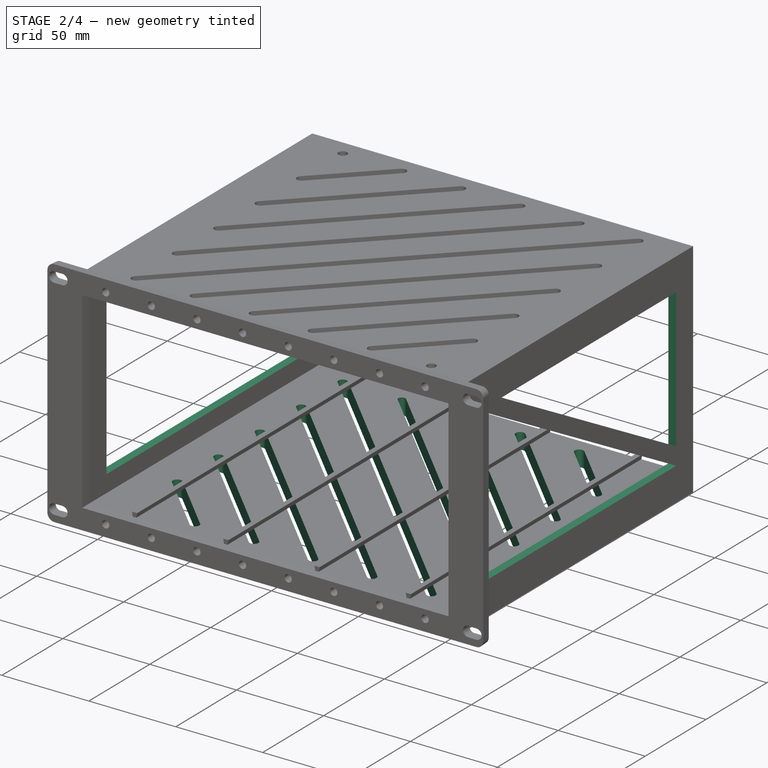
[diagram: stage 2 of 4 — iso view after this stage's code; geometry added in this stage tinted green]
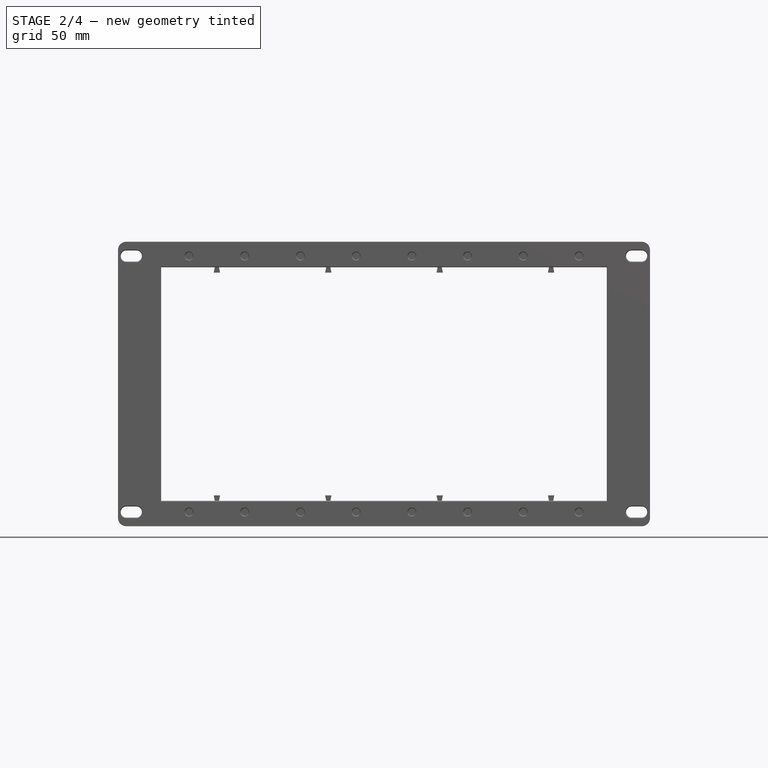
[diagram: stage 2 of 4 — front view after this stage's code; geometry added in this stage tinted green]
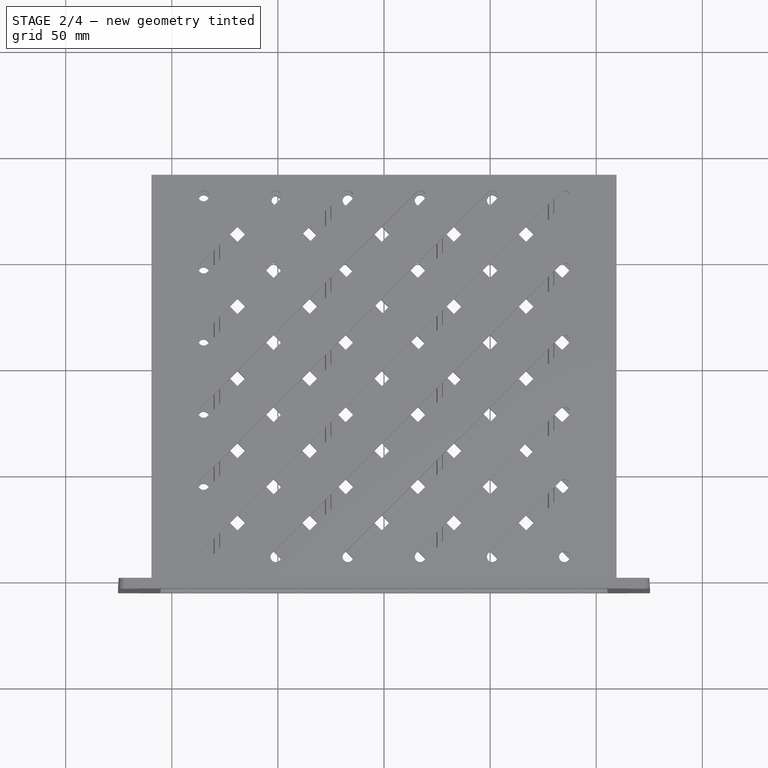
[diagram: stage 2 of 4 — top view after this stage's code; geometry added in this stage tinted green]
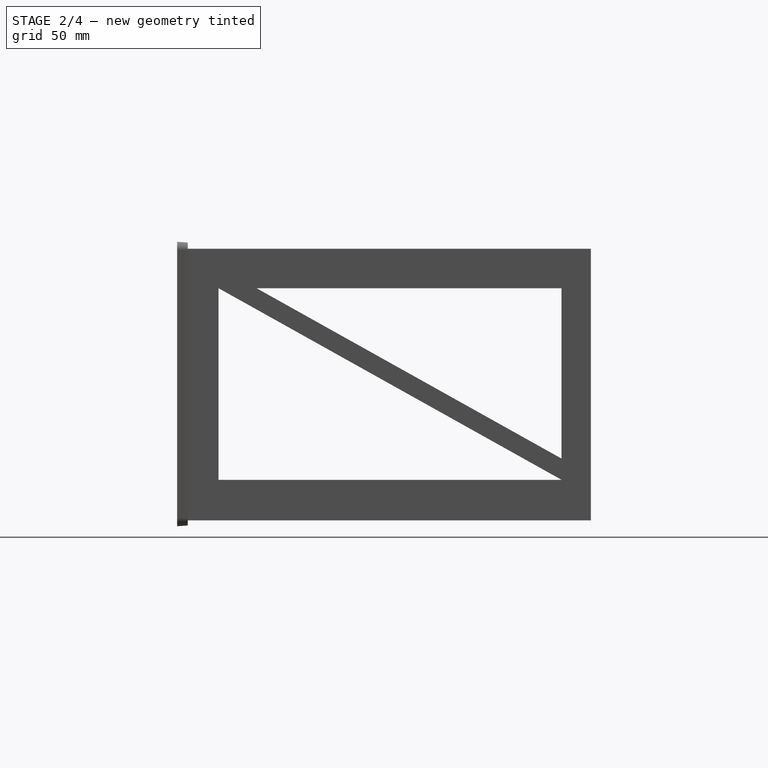
[diagram: stage 2 of 4 — right view after this stage's code; geometry added in this stage tinted green]
FEATURE [Sketcher::SketchObject] Sketch004  label="Grid sketch bottom"
  ArcFitTolerance = 1e-06
  AttachmentSupport = -> [Pocket]
  FullyConstrained = false
  MakeInternals = false
  MapMode = 5
  Placement = pos=(0,0,-64.28) rot=(1,0,0;3.14159rad)
  sketch-geometry (36):
    g0: ArcOfCircle CenterX=85 CenterY=-10 CenterZ=0 NormalX=0 NormalY=0 NormalZ=1 AngleXU=0 Radius=2.5 StartAngle=5.49779 EndAngle=8.63938
    g1: ArcOfCircle CenterX=-85 CenterY=-180 CenterZ=0 NormalX=0 NormalY=0 NormalZ=1 AngleXU=0 Radius=2.5 StartAngle=2.35619 EndAngle=5.49779
    g2: LineSegment StartX=86.7678 StartY=-11.7678 StartZ=0 EndX=-83.2322 EndY=-181.768 EndZ=0
    g3: LineSegment StartX=83.2322 StartY=-8.23223 StartZ=0 EndX=-86.7678 EndY=-178.232 EndZ=0
    g4: ArcOfCircle CenterX=51 CenterY=-10 CenterZ=0 NormalX=0 NormalY=0 NormalZ=1 AngleXU=0 Radius=2.5 StartAngle=5.49779 EndAngle=8.63938
    g5: ArcOfCircle CenterX=-85 CenterY=-146 CenterZ=0 NormalX=0 NormalY=0 NormalZ=1 AngleXU=0 Radius=2.5 StartAngle=2.35619 EndAngle=5.49779
    g6: LineSegment StartX=52.7678 StartY=-11.7678 StartZ=0 EndX=-83.2322 EndY=-147.768 EndZ=0
    g7: LineSegment StartX=49.2322 StartY=-8.23223 StartZ=0 EndX=-86.7678 EndY=-144.232 EndZ=0
    g8: ArcOfCircle CenterX=17 CenterY=-10 CenterZ=0 NormalX=0 NormalY=0 NormalZ=1 AngleXU=0 Radius=2.5 StartAngle=5.49779 EndAngle=8.63938
    g9: ArcOfCircle CenterX=-85 CenterY=-112 CenterZ=0 NormalX=0 NormalY=0 NormalZ=1 AngleXU=0 Radius=2.5 StartAngle=2.35619 EndAngle=5.49779
    g10: LineSegment StartX=18.7678 StartY=-11.7678 StartZ=0 EndX=-83.2322 EndY=-113.768 EndZ=0
    g11: LineSegment StartX=15.2322 StartY=-8.23223 StartZ=0 EndX=-86.7678 EndY=-110.232 EndZ=0
    g12: ArcOfCircle CenterX=-17 CenterY=-10 CenterZ=0 NormalX=0 NormalY=0 NormalZ=1 AngleXU=0 Radius=2.5 StartAngle=5.49779 EndAngle=8.63938
    g13: ArcOfCircle CenterX=-85 CenterY=-78 CenterZ=0 NormalX=0 NormalY=0 NormalZ=1 AngleXU=0 Radius=2.5 StartAngle=2.35619 EndAngle=5.49779
    g14: LineSegment StartX=-15.2322 StartY=-11.7678 StartZ=0 EndX=-83.2322 EndY=-79.7678 EndZ=0
    g15: LineSegment StartX=-18.7678 StartY=-8.23223 StartZ=0 EndX=-86.7678 EndY=-76.2322 EndZ=0
    g16: ArcOfCircle CenterX=-51 CenterY=-10 CenterZ=0 NormalX=0 NormalY=0 NormalZ=1 AngleXU=0 Radius=2.5 StartAngle=5.49779 EndAngle=8.63938
    g17: ArcOfCircle CenterX=-85 CenterY=-44 CenterZ=0 NormalX=0 NormalY=0 NormalZ=1 AngleXU=0 Radius=2.5 StartAngle=2.35619 EndAngle=5.49779
    g18: LineSegment StartX=-49.2322 StartY=-11.7678 StartZ=0 EndX=-83.2322 EndY=-45.7678 EndZ=0
    g19: LineSegment StartX=-52.7678 StartY=-8.23223 StartZ=0 EndX=-86.7678 EndY=-42.2322 EndZ=0
    g20: ArcOfCircle CenterX=85 CenterY=-44 CenterZ=0 NormalX=0 NormalY=0 NormalZ=1 AngleXU=0 Radius=2 StartAngle=5.49779 EndAngle=8.63938
    g21: ArcOfCircle CenterX=-51 CenterY=-180 CenterZ=0 NormalX=0 NormalY=0 NormalZ=1 AngleXU=0 Radius=2 StartAngle=2.35619 EndAngle=5.49779
    g22: LineSegment StartX=86.4142 StartY=-45.4142 StartZ=0 EndX=-49.5858 EndY=-181.414 EndZ=0
    g23: LineSegment StartX=83.5858 StartY=-42.5858 StartZ=0 EndX=-52.4142 EndY=-178.586 EndZ=0
    g24: ArcOfCircle CenterX=85 CenterY=-78 CenterZ=0 NormalX=0 NormalY=0 NormalZ=1 AngleXU=0 Radius=2.5 StartAngle=5.49779 EndAngle=8.63938
    g25: ArcOfCircle CenterX=-17 CenterY=-180 CenterZ=0 NormalX=0 NormalY=0 NormalZ=1 AngleXU=0 Radius=2.5 StartAngle=2.35619 EndAngle=5.49779
    g26: LineSegment StartX=86.7678 StartY=-79.7678 StartZ=0 EndX=-15.2322 EndY=-181.768 EndZ=0
    g27: LineSegment StartX=83.2322 StartY=-76.2322 StartZ=0 EndX=-18.7678 EndY=-178.232 EndZ=0
    g28: ArcOfCircle CenterX=85 CenterY=-112 CenterZ=0 NormalX=0 NormalY=0 NormalZ=1 AngleXU=0 Radius=2.5 StartAngle=5.49779 EndAngle=8.63938
    g29: ArcOfCircle CenterX=17 CenterY=-180 CenterZ=0 NormalX=0 NormalY=0 NormalZ=1 AngleXU=0 Radius=2.5 StartAngle=2.35619 EndAngle=5.49779
    g30: LineSegment StartX=86.7678 StartY=-113.768 StartZ=0 EndX=18.7678 EndY=-181.768 EndZ=0
    g31: LineSegment StartX=83.2322 StartY=-110.232 StartZ=0 EndX=15.2322 EndY=-178.232 EndZ=0
    g32: ArcOfCircle CenterX=85 CenterY=-146 CenterZ=0 NormalX=0 NormalY=0 NormalZ=1 AngleXU=0 Radius=2.5 StartAngle=5.49779 EndAngle=8.63938
    g33: ArcOfCircle CenterX=51 CenterY=-180 CenterZ=0 NormalX=0 NormalY=0 NormalZ=1 AngleXU=0 Radius=2.5 StartAngle=2.35619 EndAngle=5.49779
    g34: LineSegment StartX=86.7678 StartY=-147.768 StartZ=0 EndX=52.7678 EndY=-181.768 EndZ=0
    g35: LineSegment StartX=83.2322 StartY=-144.232 StartZ=0 EndX=49.2322 EndY=-178.232 EndZ=0
  constraints (54):
    c: Tangent(g0,g2) = 1.5708
    c: Tangent(g0,g3) = -1.5708
    c: Tangent(g1,g2) = 1.5708
    c: Tangent(g1,g3) = -1.5708
    c: Equal(g0,g1)
    c: Radius(g0) = 2.5
    c: Tangent(g4,g6) = 1.5708
    c: Tangent(g4,g7) = -1.5708
    c: Tangent(g5,g6) = 1.5708
    c: Tangent(g5,g7) = -1.5708
    c: Equal(g4,g5)
    c: Radius(g4) = 2.5
    c: Tangent(g8,g10) = 1.5708
    c: Tangent(g8,g11) = -1.5708
    c: Tangent(g9,g10) = 1.5708
    c: Tangent(g9,g11) = -1.5708
    c: Equal(g8,g9)
    c: Radius(g8) = 2.5
    c: Tangent(g12,g14) = 1.5708
    c: Tangent(g12,g15) = -1.5708
    c: Tangent(g13,g14) = 1.5708
    c: Tangent(g13,g15) = -1.5708
    c: Equal(g12,g13)
    c: Radius(g12) = 2.5
    c: Tangent(g16,g18) = 1.5708
    c: Tangent(g16,g19) = -1.5708
    c: Tangent(g17,g18) = 1.5708
    c: Tangent(g17,g19) = -1.5708
    c: Equal(g16,g17)
    c: Radius(g16) = 2.5
    c: Tangent(g20,g22) = 1.5708
    c: Tangent(g20,g23) = -1.5708
    c: Tangent(g21,g22) = 1.5708
    c: Tangent(g21,g23) = -1.5708
    c: Equal(g20,g21)
    c: Radius(g20) = 2
    c: Tangent(g24,g26) = 1.5708
    c: Tangent(g24,g27) = -1.5708
    c: Tangent(g25,g26) = 1.5708
    c: Tangent(g25,g27) = -1.5708
    c: Equal(g24,g25)
    c: Radius(g24) = 2.5
    c: Tangent(g28,g30) = 1.5708
    c: Tangent(g28,g31) = -1.5708
    c: Tangent(g29,g30) = 1.5708
    c: Tangent(g29,g31) = -1.5708
    c: Equal(g28,g29)
    c: Radius(g28) = 2.5
    c: Tangent(g32,g34) = 1.5708
    c: Tangent(g32,g35) = -1.5708
    c: Tangent(g33,g34) = 1.5708
    c: Tangent(g33,g35) = -1.5708
    c: Equal(g32,g33)
    c: Radius(g32) = 2.5
FEATURE [PartDesign::Pocket] Pocket001  label="Grid Pocket bottom"
  BaseFeature = -> Pocket
  Direction = (0,0,1)
  Length = 0
  Length2 = 5
  Placement = pos=(0,0,0) rot=(1,0,0;1.5708rad)
  Profile = -> Sketch004
  ReferenceAxis = -> Sketch004 [N_Axis]
  Refine = true
  Suppressed = false
  Type = 3
  UpToFace = -> Pocket [Face98]
FEATURE [Sketcher::SketchObject] Sketch007  label="Triangles cut right"
  ArcFitTolerance = 1e-06
  AttachmentSupport = -> [Pocket001]
  FullyConstrained = true
  MakeInternals = false
  MapMode = 5
  Placement = pos=(109.57,0,0) rot=(0.707107,0,0.707107;3.14159rad)
  sketch-geometry (12):
    g0: LineSegment [constr] StartX=-45.15 StartY=-176.17 StartZ=0 EndX=45.15 EndY=-176.17 EndZ=0
    g1: LineSegment [constr] StartX=45.15 StartY=-176.17 StartZ=0 EndX=45.15 EndY=-14.51 EndZ=0
    g2: LineSegment [constr] StartX=45.15 StartY=-14.51 StartZ=0 EndX=-45.15 EndY=-14.51 EndZ=0
    g3: LineSegment [constr] StartX=-45.15 StartY=-14.51 StartZ=0 EndX=-45.15 EndY=-176.17 EndZ=0
    g4: GeomPoint [constr] X=0 Y=-95.34 Z=0
    g5: LineSegment [constr] StartX=-45.15 StartY=-176.17 StartZ=0 EndX=45.15 EndY=-14.51 EndZ=0
    g6: LineSegment StartX=-35.15 StartY=-176.17 StartZ=0 EndX=45.15 EndY=-32.4125 EndZ=0
    g7: LineSegment StartX=45.15 StartY=-32.4125 StartZ=0 EndX=45.15 EndY=-176.17 EndZ=0
    g8: LineSegment StartX=-35.15 StartY=-176.17 StartZ=0 EndX=45.15 EndY=-176.17 EndZ=0
    g9: LineSegment StartX=45.15 StartY=-14.51 StartZ=0 EndX=-45.15 EndY=-176.17 EndZ=0
    g10: LineSegment StartX=-45.15 StartY=-176.17 StartZ=0 EndX=-45.15 EndY=-14.51 EndZ=0
    g11: LineSegment StartX=45.15 StartY=-14.51 StartZ=0 EndX=-45.15 EndY=-14.51 EndZ=0
  constraints (30):
    c: Coincident(g0,g1)
    c: Coincident(g1,g2)
    c: Coincident(g2,g3)
    c: Coincident(g3,g0)
    c: Horizontal(g0)
    c: Horizontal(g2)
    c: Vertical(g1)
    c: Vertical(g3)
    c: Symmetric(g2,g0,g4)
    c: PointOnObject(g4,g-2)
    c: Distance(g-1,g2) = 14.51
    c: DistanceY(g3,g3) = 161.66
    c: DistanceX(g0,g0) = 90.3
    c: Coincident(g5,g0)
    c: Coincident(g5,g1)
    c: Angle(g6,g5) = 0
    c: Distance(g6,g0) = 10
    c: PointOnObject(g6,g1)
    c: PointOnObject(g6,g0)
    c: Coincident(g7,g6)
    c: Coincident(g7,g0)
    c: Coincident(g8,g6)
    c: Coincident(g8,g0)
    c: Coincident(g10,g9)
    c: Coincident(g11,g9)
    c: Distance(g10,g-1) = 14.51
    c: Distance(g7,g10) = 90.3
    c: Coincident(g11,g10)
    c: Coincident(g9,g0)
    c: Coincident(g9,g1)
FEATURE [Sketcher::SketchObject] Sketch006  label="Triangles cut left"
  ArcFitTolerance = 1e-06
  AttachmentSupport = -> [Pocket001]
  FullyConstrained = true
  MakeInternals = false
  MapMode = 5
  Placement = pos=(-105,0,0) rot=(0.707107,0,0.707107;3.14159rad)
  sketch-geometry (12):
    g0: LineSegment [constr] StartX=-45.15 StartY=-176.17 StartZ=0 EndX=45.15 EndY=-176.17 EndZ=0
    g1: LineSegment [constr] StartX=45.15 StartY=-176.17 StartZ=0 EndX=45.15 EndY=-14.51 EndZ=0
    g2: LineSegment [constr] StartX=45.15 StartY=-14.51 StartZ=0 EndX=-45.15 EndY=-14.51 EndZ=0
    g3: LineSegment [constr] StartX=-45.15 StartY=-14.51 StartZ=0 EndX=-45.15 EndY=-176.17 EndZ=0
    g4: GeomPoint [constr] X=0 Y=-95.34 Z=0
    g5: LineSegment [constr] StartX=-45.15 StartY=-176.17 StartZ=0 EndX=45.15 EndY=-14.51 EndZ=0
    g6: LineSegment StartX=-35.15 StartY=-176.17 StartZ=0 EndX=45.15 EndY=-32.4125 EndZ=0
    g7: LineSegment StartX=45.15 StartY=-32.4125 StartZ=0 EndX=45.15 EndY=-176.17 EndZ=0
    g8: LineSegment StartX=-35.15 StartY=-176.17 StartZ=0 EndX=45.15 EndY=-176.17 EndZ=0
    g9: LineSegment StartX=45.15 StartY=-14.51 StartZ=0 EndX=-45.15 EndY=-176.17 EndZ=0
    g10: LineSegment StartX=-45.15 StartY=-176.17 StartZ=0 EndX=-45.15 EndY=-14.51 EndZ=0
    g11: LineSegment StartX=45.15 StartY=-14.51 StartZ=0 EndX=-45.15 EndY=-14.51 EndZ=0
  constraints (30):
    c: Coincident(g0,g1)
    c: Coincident(g1,g2)
    c: Coincident(g2,g3)
    c: Coincident(g3,g0)
    c: Horizontal(g0)
    c: Horizontal(g2)
    c: Vertical(g1)
    c: Vertical(g3)
    c: Symmetric(g2,g0,g4)
    c: PointOnObject(g4,g-2)
    c: Distance(g-1,g2) = 14.51
    c: DistanceY(g3,g3) = 161.66
    c: DistanceX(g0,g0) = 90.3
    c: Coincident(g5,g0)
    c: Coincident(g5,g1)
    c: Angle(g6,g5) = 0
    c: Distance(g6,g0) = 10
    c: PointOnObject(g6,g1)
    c: PointOnObject(g6,g0)
    c: Coincident(g7,g6)
    c: Coincident(g7,g0)
    c: Coincident(g8,g6)
    c: Coincident(g8,g0)
    c: Coincident(g10,g9)
    c: Coincident(g11,g9)
    c: Distance(g10,g-1) = 14.51
    c: Distance(g7,g10) = 90.3
    c: Coincident(g11,g10)
    c: Coincident(g9,g0)
    c: Coincident(g1,g9)
FEATURE [PartDesign::Pocket] Pocket002  label="Triagles Pocket left"
  BaseFeature = -> Pocket001
  Direction = (-1,0,2e-16)
  Length = 10
  Length2 = 5
  Placement = pos=(0,0,0) rot=(1,0,0;1.5708rad)
  Profile = -> Sketch006
  ReferenceAxis = -> Sketch006 [N_Axis]
  Refine = true
  Suppressed = false
  Type = 0
FEATURE [PartDesign::Pocket] Pocket003  label="Triagles Pocket right"
  BaseFeature = -> Pocket002
  Direction = (-1,0,2e-16)
  Length = 5
  Length2 = 5
  Placement = pos=(0,0,0) rot=(1,0,0;1.5708rad)
  Profile = -> Sketch007
  ReferenceAxis = -> Sketch007 [N_Axis]
  Refine = true
  Suppressed = false
  Type = 0
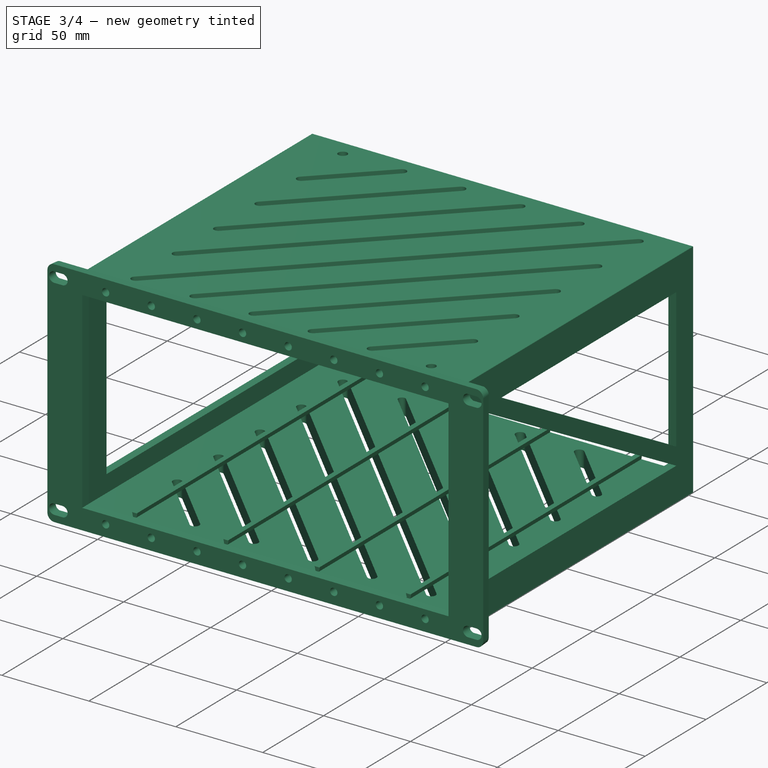
[diagram: stage 3 of 4 — iso view after this stage's code; geometry added in this stage tinted green]
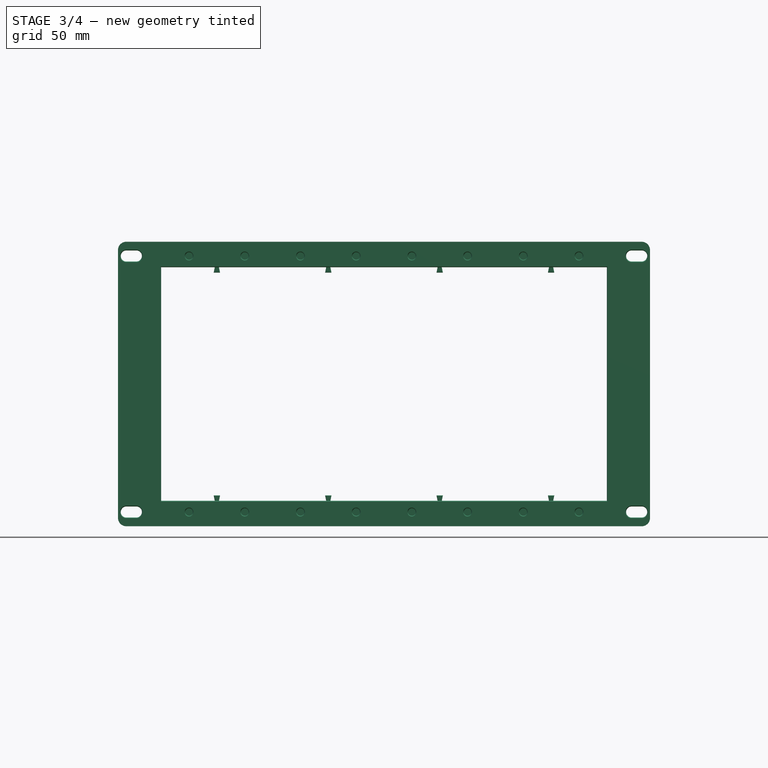
[diagram: stage 3 of 4 — front view after this stage's code; geometry added in this stage tinted green]
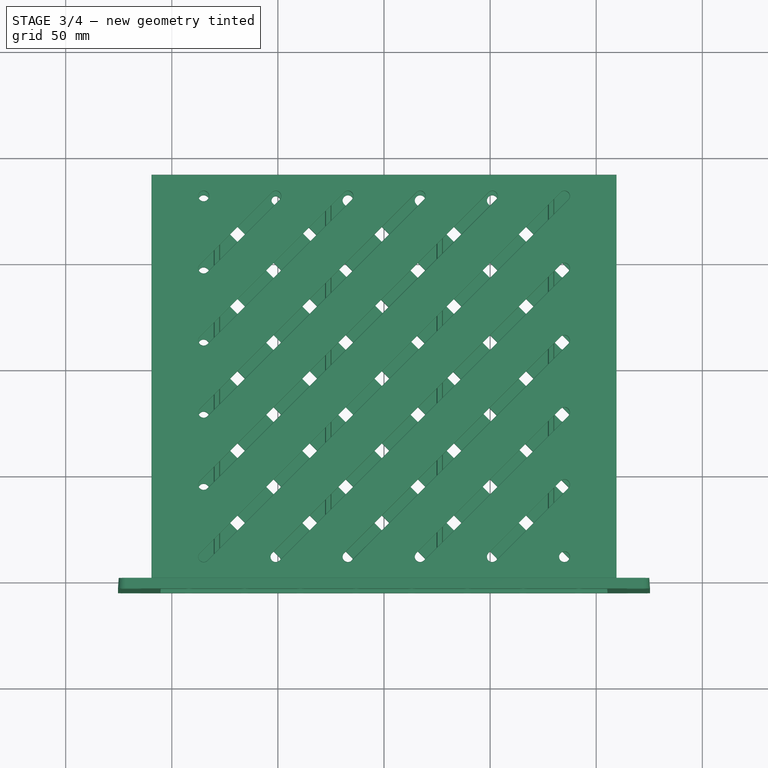
[diagram: stage 3 of 4 — top view after this stage's code; geometry added in this stage tinted green]
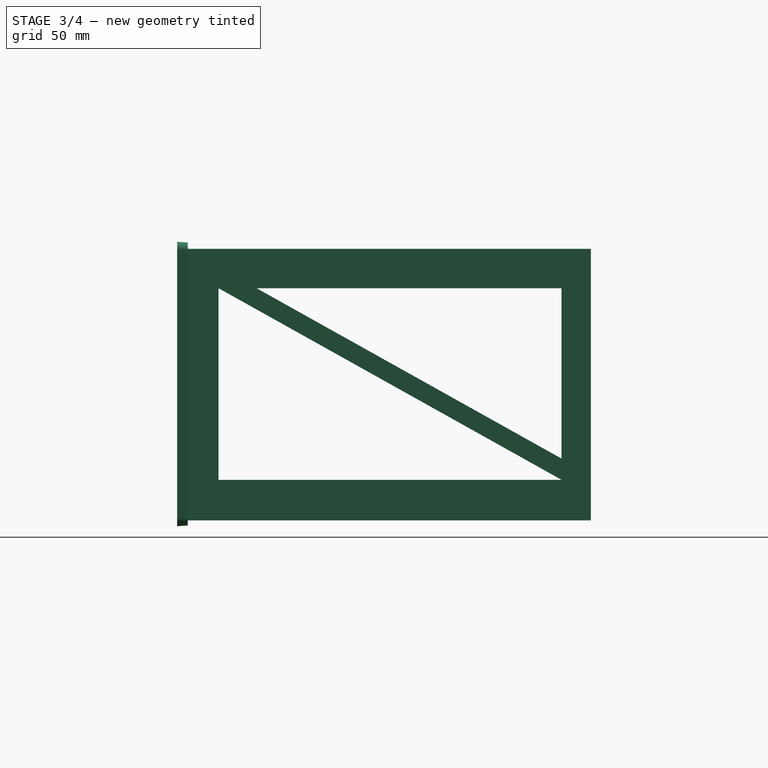
[diagram: stage 3 of 4 — right view after this stage's code; geometry added in this stage tinted green]
FEATURE [PartDesign::Fillet] Fillet  label="Tope fillet"
  Base = -> Pocket003 [Face23]
  BaseFeature = -> Pocket003
  Placement = pos=(0,0,0) rot=(1,0,0;1.5708rad)
  Radius = 0.3
  Refine = true
  SupportTransform = false
  Suppressed = false
  UseAllEdges = false
FEATURE [PartDesign::Fillet] Fillet001  label="Dovetails front fillet"
  Base = -> Fillet [Edge539,Edge537,Edge551,Edge510,Edge512,Edge524,Edge485,Edge483,Edge497,Edge470,Edge458,Edge456,Edge598,Edge579,Edge597,Edge649,Edge648,Edge625,Edge703,Edge702,Edge679,Edge754,Edge753,Edge730]
  BaseFeature = -> Fillet
  Placement = pos=(0,0,0) rot=(1,0,0;1.5708rad)
  Radius = 0.3
  Refine = true
  SupportTransform = false
  Suppressed = false
  UseAllEdges = false
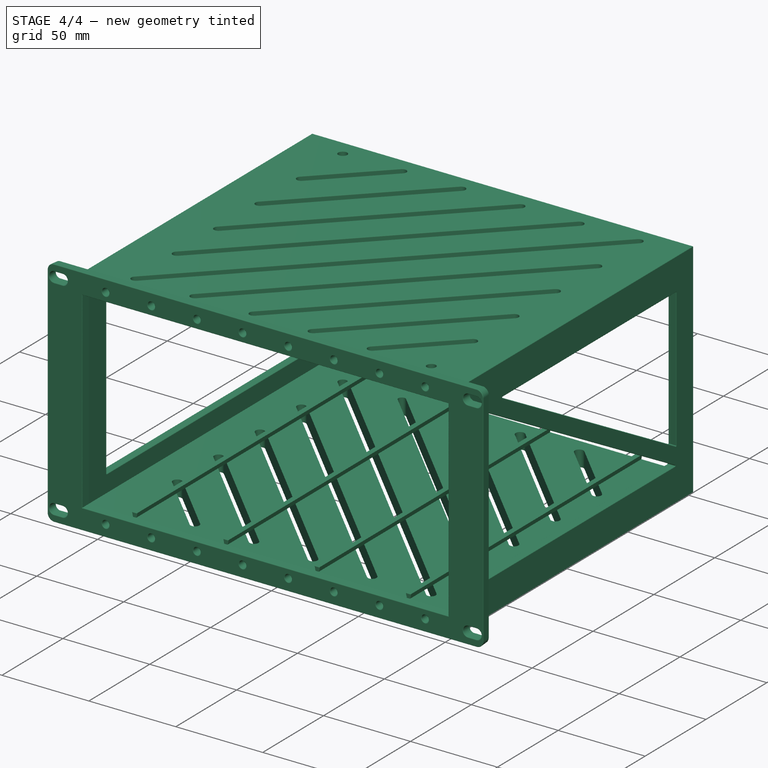
[diagram: stage 4 of 4 — iso view after this stage's code; geometry added in this stage tinted green]
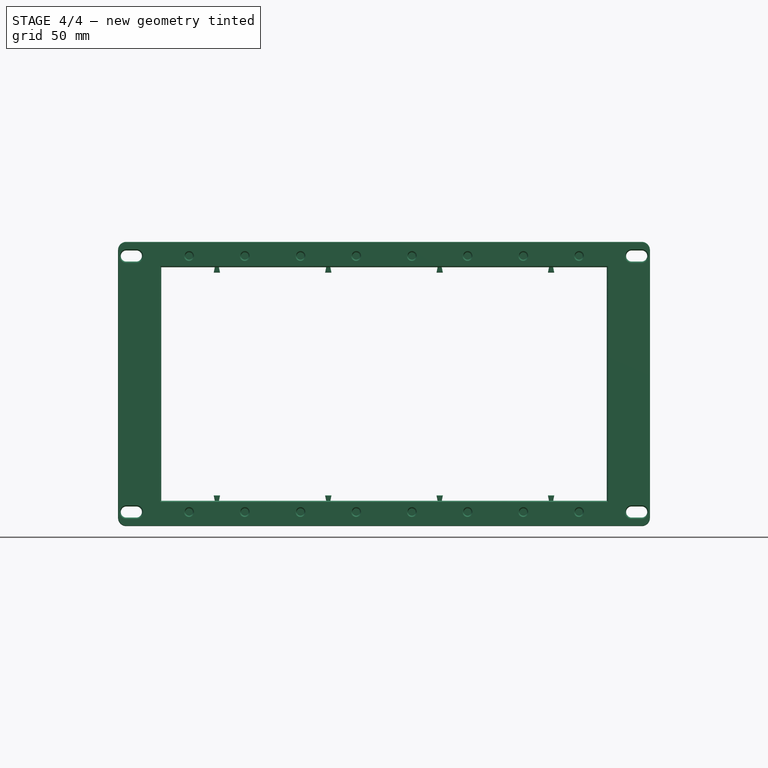
[diagram: stage 4 of 4 — front view after this stage's code; geometry added in this stage tinted green]
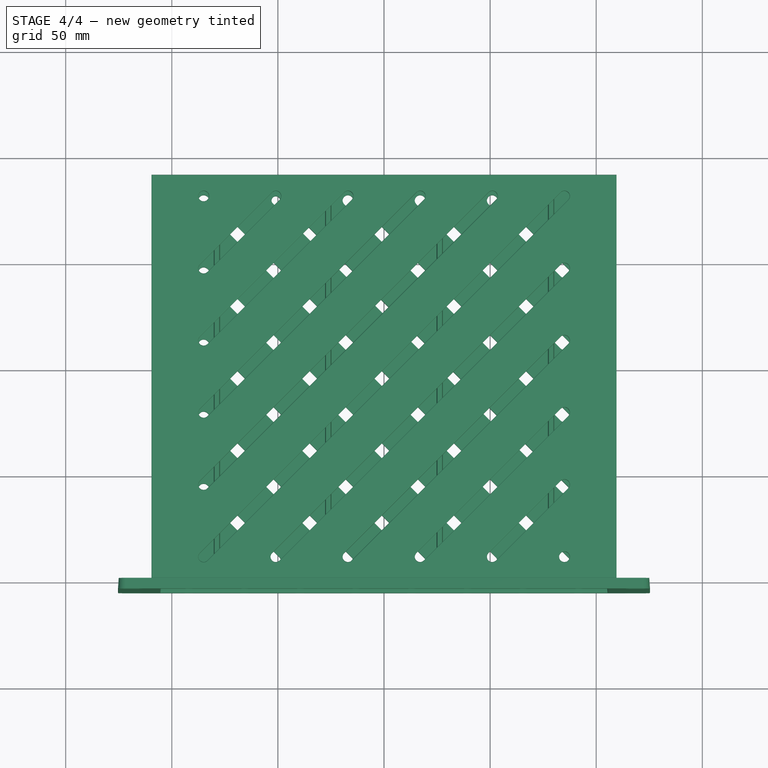
[diagram: stage 4 of 4 — top view after this stage's code; geometry added in this stage tinted green]
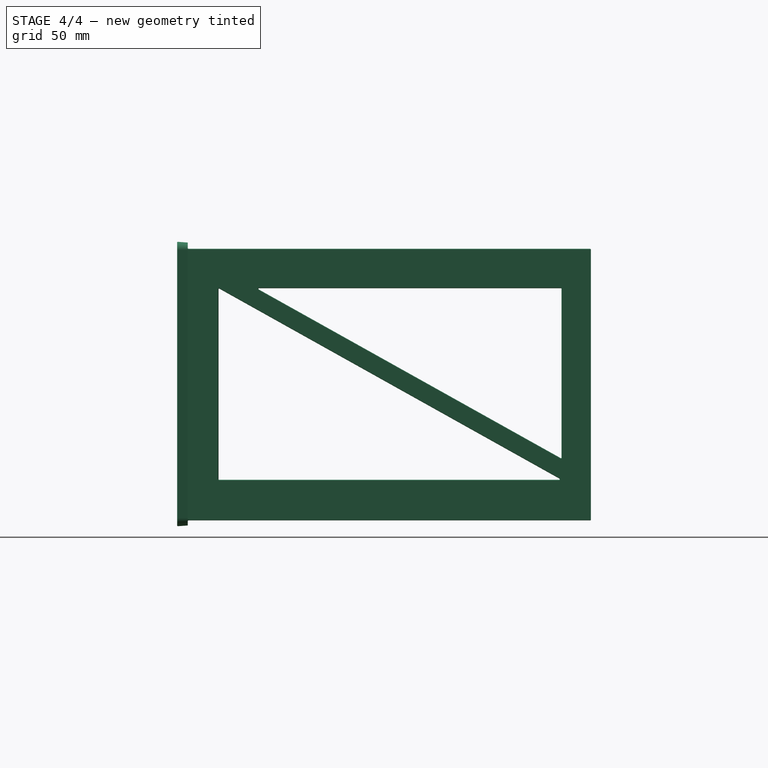
[diagram: stage 4 of 4 — right view after this stage's code; geometry added in this stage tinted green]
FEATURE [PartDesign::Fillet] Fillet002  label="Front fillet"
  Base = -> Fillet001 [Face36]
  BaseFeature = -> Fillet001
  Placement = pos=(0,0,0) rot=(1,0,0;1.5708rad)
  Radius = 0.3
  Refine = true
  SupportTransform = false
  Suppressed = false
  UseAllEdges = false
FEATURE [PartDesign::Fillet] Fillet003  label="Bottom fillet"
  Base = -> Fillet002 [Face142]
  BaseFeature = -> Fillet002
  Placement = pos=(0,0,0) rot=(1,0,0;1.5708rad)
  Radius = 0.3
  Refine = true
  SupportTransform = false
  Suppressed = false
  UseAllEdges = false
FEATURE [PartDesign::Fillet] Fillet004  label="Sides Fillet"
  Base = -> Fillet003 [Face45,Face49,Face50,Face47,Face48,Face46,Face57,Face59,Face58,Face55,Face56,Face60]
  BaseFeature = -> Fillet003
  Placement = pos=(0,0,0) rot=(1,0,0;1.5708rad)
  Radius = 0.3
  Refine = true
  SupportTransform = false
  Suppressed = false
  UseAllEdges = false
FEATURE [PartDesign::Body] Body
  AllowCompound = false
  Group = -> [Sketch,Sketch001,Pad,Sketch002,Pad001,Sketch003,Pocket,Sketch004,Pocket001,Sketch006,Pocket002,Sketch007,Pocket003,Fillet,Fillet001,Fillet002,Fillet003,Fillet004]
  Origin = -> Origin
  Tip = -> Fillet004
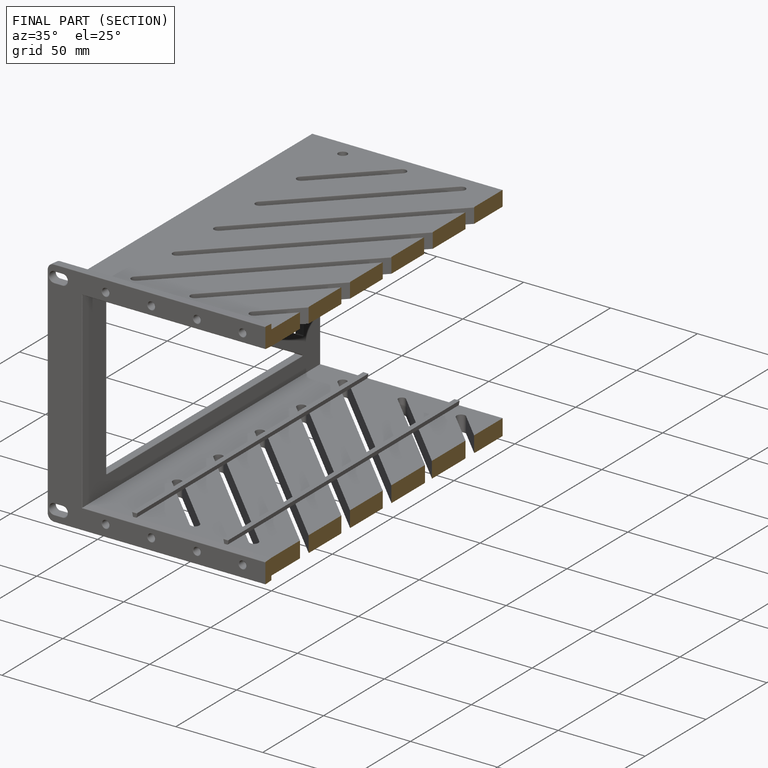
[diagram: finished part — half-section view (interior)]
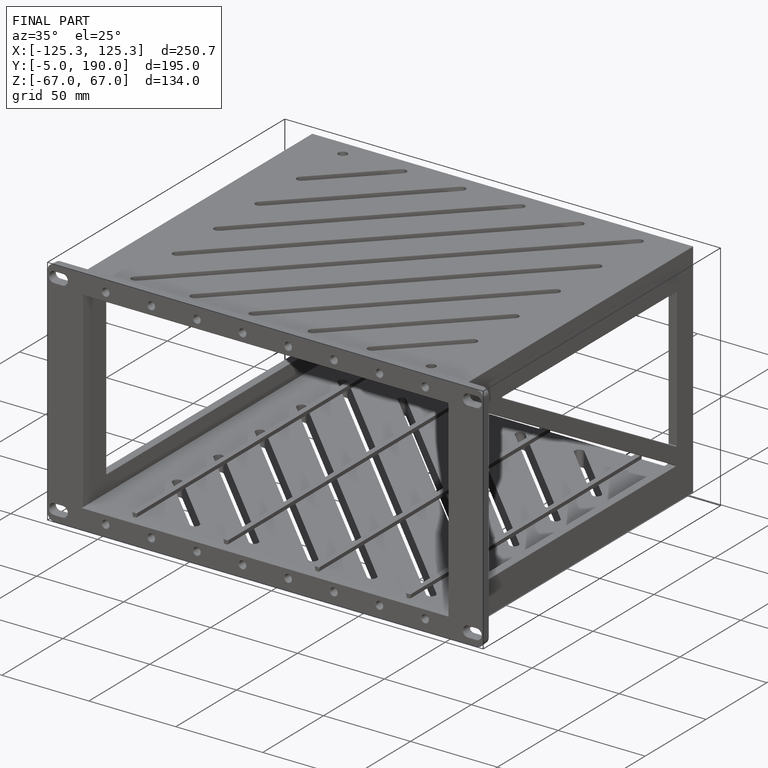
[diagram: finished part — iso view with bounding-box wireframe]
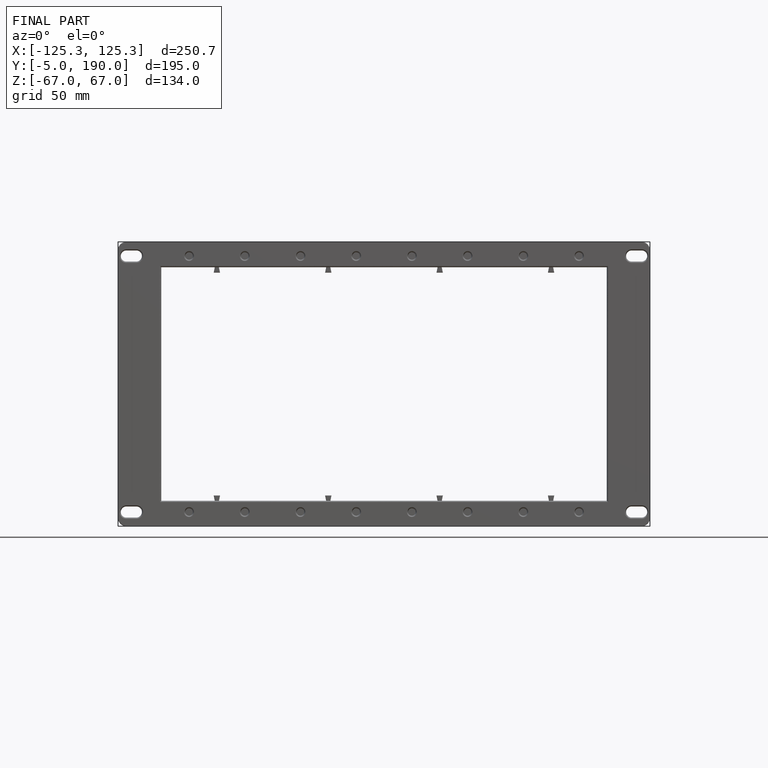
[diagram: finished part — front view with bounding-box wireframe]
